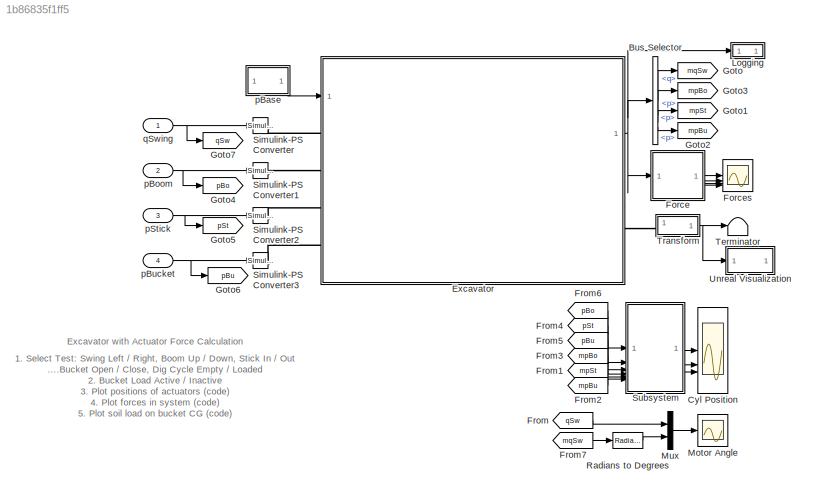
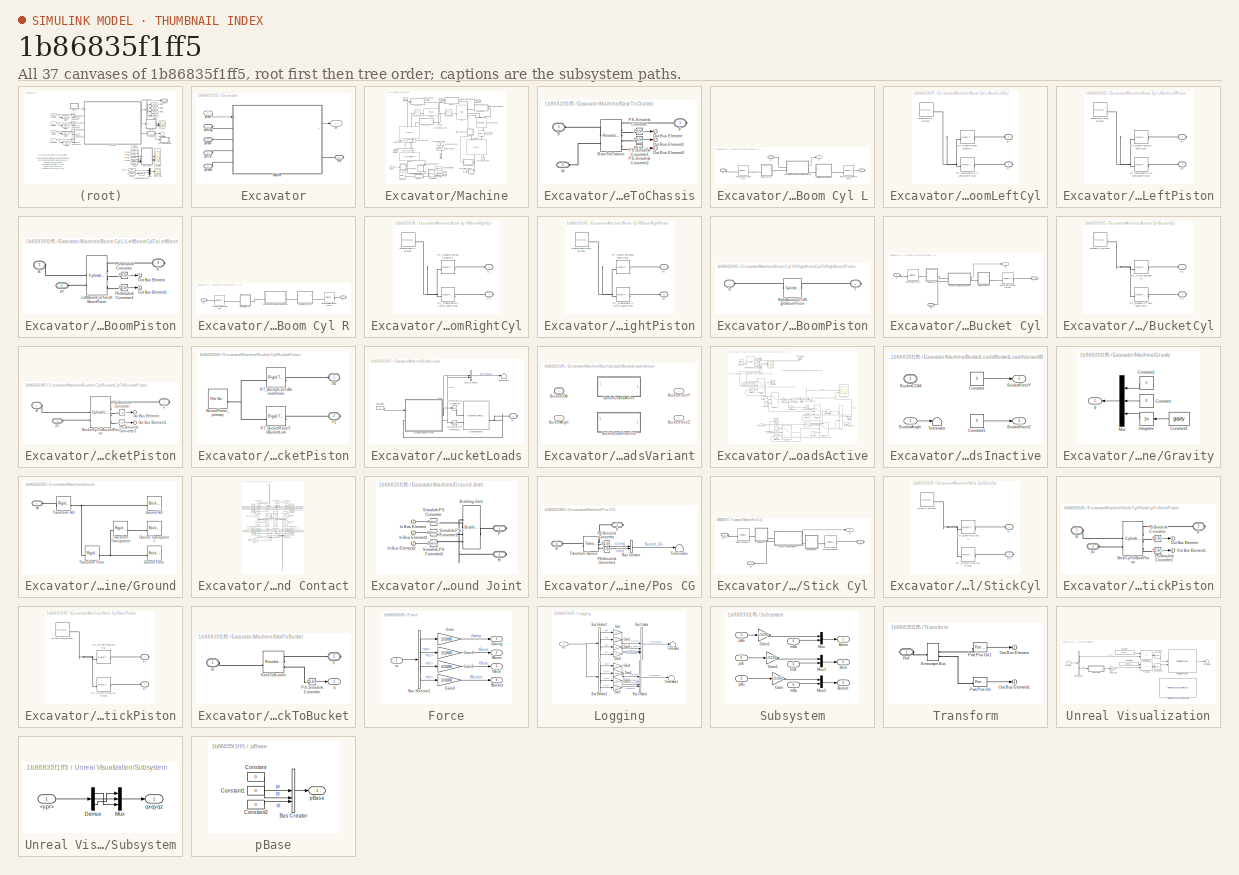
[diagram: thumbnail index - all 37 canvases of the model, root first then tree order]
MODEL slx_1b86835f1ff5
KIND model
CONFIG AbsTol = 1e-3
CONFIG MaxStep = 0.1
CONFIG PostLoadFcn = set_param(bdroot,'IgnoredZcDiagnostic','none');\nactiveTestPos = ScenarioMotion.loadedBucketDigCycle;
CONFIG SolverName = ode23t
CONFIG StopTime = activeTestPos.getElement('swingAng').Time(end)
WORKSPACE source: external: MAT-File  (data not in archive)
BLOCK [BusSelector] Bus Selector
  OutputSignals = Swing.q,Boom.p,Stick.p,Bucket.p
BLOCK [Scope] Cyl Position
  ActiveDisplayYMaximum = 1.26585
  ActiveDisplayYMinimum = -0.10545
  DataLoggingVariableName = ScopeData1
  Floating = off
  GraphicalSettings = {"GraphicalSettings":{"LegacySettings":true,"Style":{"AxesScalingProperties":{"ScaleAxesLimitsAtStop":false},"Style":{"AxesColor":"[0 0 0]","ChannelNames":[""],"ColorOrder":"[1 0.909803921568627 0.392156862745098;0.149019607843137 0.549019607843137 0.866666666666667;0.96078431372549 0.466666666666667 0.16078431372549;0.286274509803922 0.858823529411765 0.250980392156863;0.752941176470588 0.3607843...<+788ch>
  MultipleDisplayCache = [{"MaxYLimMag":1.26585,"MaxYLimReal":1.26585,"MinYLimMag":0,"MinYLimReal":-0.10545,"PlotAsMagnitudePhase":false,"ShowGrid":true,"ShowLegend":false,"Title":"%<SignalLabel>","YLabel":""}]
  NumInputPorts = 3
  WasSavedAsWebScope = on
  WindowPosition = [987 448 424 330]
BLOCK [SubSystem] Excavator
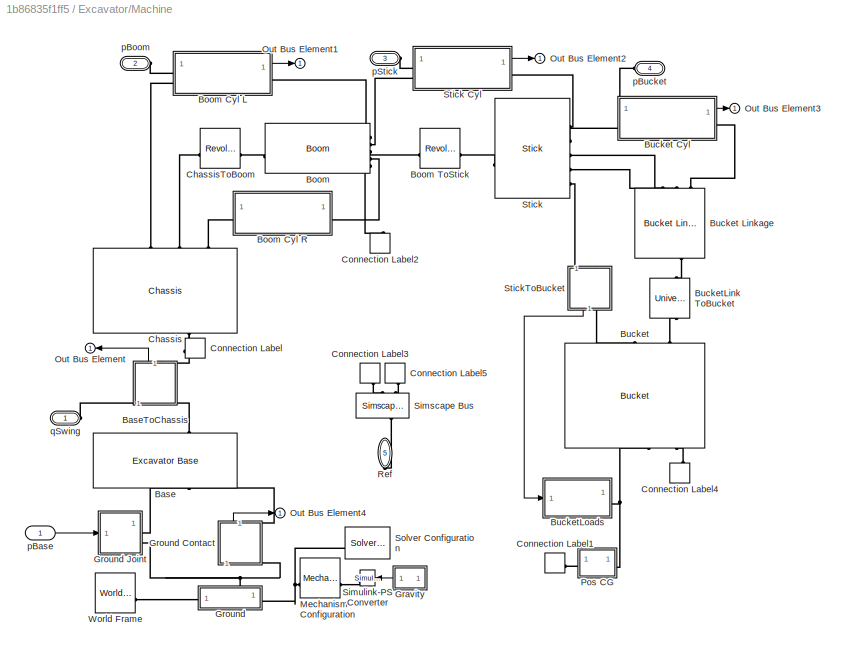
BLOCK [SubSystem] Excavator/Machine
BLOCK [Reference] Excavator/Machine/Base  REF=Excavator_Parts_Lib/Excavator
Base
  NameLocation = right
  SourceBlock = Excavator_Parts_Lib/Excavator\nBase
  Tag = AAA55596-1DB0-4345-9724-6685E48489E2
BLOCK [SubSystem] Excavator/Machine/BaseToChassis
  NameLocation = right
  Tag = 1fdcb50d-bed1-4557-9df5-71c57fded59e
BLOCK [PMIOPort] Excavator/Machine/BaseToChassis/B
  Port = 3
  Side = Left
BLOCK [Reference] Excavator/Machine/BaseToChassis/BaseToChassis  REF=sm_lib/Joints/Revolute Joint
  SourceBlock = sm_lib/Joints/Revolute Joint
  SourceType = Revolute Joint
BLOCK [PMIOPort] Excavator/Machine/BaseToChassis/F
  Side = Right
BLOCK [Outport] Excavator/Machine/BaseToChassis/Out Bus Element
BLOCK [Outport] Excavator/Machine/BaseToChassis/Out Bus Element1
BLOCK [Outport] Excavator/Machine/BaseToChassis/Out Bus Element2
BLOCK [Reference] Excavator/Machine/BaseToChassis/PS-Simulink Converter  REF=nesl_utility/PS-Simulink
Converter
  SourceBlock = nesl_utility/PS-Simulink\nConverter
  SourceType = PS-Simulink\nConverter
BLOCK [Reference] Excavator/Machine/BaseToChassis/PS-Simulink Converter1  REF=nesl_utility/PS-Simulink
Converter
  SourceBlock = nesl_utility/PS-Simulink\nConverter
  SourceType = PS-Simulink\nConverter
BLOCK [Reference] Excavator/Machine/BaseToChassis/PS-Simulink Converter2  REF=nesl_utility/PS-Simulink
Converter
  SourceBlock = nesl_utility/PS-Simulink\nConverter
  SourceType = PS-Simulink\nConverter
BLOCK [PMIOPort] Excavator/Machine/BaseToChassis/qz
  Port = 2
  Side = Left
BLOCK [Reference] Excavator/Machine/Boom  REF=Excavator_Parts_Lib/Boom
  SourceBlock = Excavator_Parts_Lib/Boom
  Tag = FF941BC7-23B6-8A4E-AE2C-D7583C913694
BLOCK [SubSystem] Excavator/Machine/Boom Cyl L
BLOCK [PMIOPort] Excavator/Machine/Boom Cyl L/B
  Port = 2
  Side = Left
BLOCK [SubSystem] Excavator/Machine/Boom Cyl L/BoomLeftCyl
  Tag = 4F70B330-6F24-E84C-8BE5-4F108E58AE93
BLOCK [PMIOPort] Excavator/Machine/Boom Cyl L/BoomLeftCyl/B1
  Side = Left
BLOCK [Reference] Excavator/Machine/Boom Cyl L/BoomLeftCyl/BoomLeftCyl_primary  REF=sm_lib/Body Elements/File Solid
  SourceBlock = sm_lib/Body Elements/File Solid
  SourceType = File Solid
BLOCK [PMIOPort] Excavator/Machine/Boom Cyl L/BoomLeftCyl/F1
  Port = 2
  Side = Right
BLOCK [Reference] Excavator/Machine/Boom Cyl L/BoomLeftCyl/RT_ChassisToLeftBoomCyl  REF=sm_lib/Frames and
Transforms/Rigid
Transform
  SourceBlock = sm_lib/Frames and\nTransforms/Rigid\nTransform
  SourceType = Rigid\nTransform
BLOCK [Reference] Excavator/Machine/Boom Cyl L/BoomLeftCyl/RT_LeftBoomCylToLeftBoomPiston  REF=sm_lib/Frames and
Transforms/Rigid
Transform
  SourceBlock = sm_lib/Frames and\nTransforms/Rigid\nTransform
  SourceType = Rigid\nTransform
BLOCK [SubSystem] Excavator/Machine/Boom Cyl L/BoomLeftPiston
  Tag = 45215E48-B489-9D47-85FC-0A495393BD12
BLOCK [PMIOPort] Excavator/Machine/Boom Cyl L/BoomLeftPiston/B1
  Port = 2
  Side = Right
BLOCK [PMIOPort] Excavator/Machine/Boom Cyl L/BoomLeftPiston/B2
  Side = Left
BLOCK [Reference] Excavator/Machine/Boom Cyl L/BoomLeftPiston/BoomLeftPiston_primary  REF=sm_lib/Body Elements/File Solid
  SourceBlock = sm_lib/Body Elements/File Solid
  SourceType = File Solid
BLOCK [Reference] Excavator/Machine/Boom Cyl L/BoomLeftPiston/RT_BoomToLeftBoomPiston  REF=sm_lib/Frames and
Transforms/Rigid
Transform
  SourceBlock = sm_lib/Frames and\nTransforms/Rigid\nTransform
  SourceType = Rigid\nTransform
BLOCK [Reference] Excavator/Machine/Boom Cyl L/BoomLeftPiston/RT_LeftBoomCylToLeftBoomPiston  REF=sm_lib/Frames and
Transforms/Rigid
Transform
  SourceBlock = sm_lib/Frames and\nTransforms/Rigid\nTransform
  SourceType = Rigid\nTransform
BLOCK [Reference] Excavator/Machine/Boom Cyl L/BoomToLeftBoomPiston  REF=sm_lib/Joints/Universal
Joint
  NameLocation = top
  SourceBlock = sm_lib/Joints/Universal\nJoint
  SourceType = Universal\nJoint
BLOCK [Reference] Excavator/Machine/Boom Cyl L/ChassisToLeftBoomCyl  REF=sm_lib/Joints/Universal
Joint
  SourceBlock = sm_lib/Joints/Universal\nJoint
  SourceType = Universal\nJoint
BLOCK [PMIOPort] Excavator/Machine/Boom Cyl L/F
  Port = 3
  Side = Right
BLOCK [SubSystem] Excavator/Machine/Boom Cyl L/LeftBoomCylToLeftBoomPiston
  Tag = 020d177e-0dad-473d-ac20-6fcc1e17d1fc
BLOCK [PMIOPort] Excavator/Machine/Boom Cyl L/LeftBoomCylToLeftBoomPiston/B
  Port = 2
  Side = Left
BLOCK [PMIOPort] Excavator/Machine/Boom Cyl L/LeftBoomCylToLeftBoomPiston/F
  Port = 3
  Side = Right
BLOCK [Reference] Excavator/Machine/Boom Cyl L/LeftBoomCylToLeftBoomPiston/LeftBoomCylToLeftBoomPiston  REF=sm_lib/Joints/Cylindrical
Joint
  SourceBlock = sm_lib/Joints/Cylindrical\nJoint
  SourceType = Cylindrical\nJoint
BLOCK [Outport] Excavator/Machine/Boom Cyl L/LeftBoomCylToLeftBoomPiston/Out Bus Element
BLOCK [Outport] Excavator/Machine/Boom Cyl L/LeftBoomCylToLeftBoomPiston/Out Bus Element1
BLOCK [Reference] Excavator/Machine/Boom Cyl L/LeftBoomCylToLeftBoomPiston/PS-Simulink Converter  REF=nesl_utility/PS-Simulink
Converter
  SourceBlock = nesl_utility/PS-Simulink\nConverter
  SourceType = PS-Simulink\nConverter
BLOCK [Reference] Excavator/Machine/Boom Cyl L/LeftBoomCylToLeftBoomPiston/PS-Simulink Converter1  REF=nesl_utility/PS-Simulink
Converter
  SourceBlock = nesl_utility/PS-Simulink\nConverter
  SourceType = PS-Simulink\nConverter
BLOCK [PMIOPort] Excavator/Machine/Boom Cyl L/LeftBoomCylToLeftBoomPiston/pz
  Side = Left
BLOCK [Outport] Excavator/Machine/Boom Cyl L/m
BLOCK [PMIOPort] Excavator/Machine/Boom Cyl L/pz
  Side = Left
BLOCK [SubSystem] Excavator/Machine/Boom Cyl R
BLOCK [PMIOPort] Excavator/Machine/Boom Cyl R/B
  Port = 2
  Side = Left
BLOCK [SubSystem] Excavator/Machine/Boom Cyl R/BoomRightCyl
  Tag = 807666EC-A6D7-8B4A-99F9-B3248F920B99
BLOCK [PMIOPort] Excavator/Machine/Boom Cyl R/BoomRightCyl/B1
  Side = Left
BLOCK [Reference] Excavator/Machine/Boom Cyl R/BoomRightCyl/BoomRightCyl_primary  REF=sm_lib/Body Elements/File Solid
  SourceBlock = sm_lib/Body Elements/File Solid
  SourceType = File Solid
BLOCK [PMIOPort] Excavator/Machine/Boom Cyl R/BoomRightCyl/F1
  Port = 2
  Side = Right
BLOCK [Reference] Excavator/Machine/Boom Cyl R/BoomRightCyl/RT_ChassisToRightBoomCyl  REF=sm_lib/Frames and
Transforms/Rigid
Transform
  SourceBlock = sm_lib/Frames and\nTransforms/Rigid\nTransform
  SourceType = Rigid\nTransform
BLOCK [Reference] Excavator/Machine/Boom Cyl R/BoomRightCyl/RT_RightBoomCylToRightBoomPiston  REF=sm_lib/Frames and
Transforms/Rigid
Transform
  SourceBlock = sm_lib/Frames and\nTransforms/Rigid\nTransform
  SourceType = Rigid\nTransform
BLOCK [SubSystem] Excavator/Machine/Boom Cyl R/BoomRightPiston
  Tag = 00EE293A-0F1A-9247-9056-19EF67FE5161
BLOCK [PMIOPort] Excavator/Machine/Boom Cyl R/BoomRightPiston/B1
  Side = Right
BLOCK [PMIOPort] Excavator/Machine/Boom Cyl R/BoomRightPiston/B2
  Port = 2
  Side = Left
BLOCK [Reference] Excavator/Machine/Boom Cyl R/BoomRightPiston/BoomRightPiston_primary  REF=sm_lib/Body Elements/File Solid
  SourceBlock = sm_lib/Body Elements/File Solid
  SourceType = File Solid
BLOCK [Reference] Excavator/Machine/Boom Cyl R/BoomRightPiston/RT_BoomToRightBoomPiston  REF=sm_lib/Frames and
Transforms/Rigid
Transform
  SourceBlock = sm_lib/Frames and\nTransforms/Rigid\nTransform
  SourceType = Rigid\nTransform
BLOCK [Reference] Excavator/Machine/Boom Cyl R/BoomRightPiston/RT_RightBoomCylToRightBoomPiston  REF=sm_lib/Frames and
Transforms/Rigid
Transform
  SourceBlock = sm_lib/Frames and\nTransforms/Rigid\nTransform
  SourceType = Rigid\nTransform
BLOCK [Reference] Excavator/Machine/Boom Cyl R/BoomToRightBoomPiston  REF=sm_lib/Joints/Universal
Joint
  SourceBlock = sm_lib/Joints/Universal\nJoint
  SourceType = Universal\nJoint
BLOCK [Reference] Excavator/Machine/Boom Cyl R/ChassisToRightBoomCyl  REF=sm_lib/Joints/Universal
Joint
  SourceBlock = sm_lib/Joints/Universal\nJoint
  SourceType = Universal\nJoint
BLOCK [PMIOPort] Excavator/Machine/Boom Cyl R/F
  NameLocation = top
  Side = Right
BLOCK [SubSystem] Excavator/Machine/Boom Cyl R/RightBoomCylToRightBoomPiston
  Tag = f4b02144-fc21-4459-875a-429d4adb33c6
BLOCK [PMIOPort] Excavator/Machine/Boom Cyl R/RightBoomCylToRightBoomPiston/B
  Side = Left
BLOCK [PMIOPort] Excavator/Machine/Boom Cyl R/RightBoomCylToRightBoomPiston/F
  Port = 2
  Side = Right
BLOCK [Reference] Excavator/Machine/Boom Cyl R/RightBoomCylToRightBoomPiston/RightBoomCylToRightBoomPiston  REF=sm_lib/Joints/Cylindrical
Joint
  SourceBlock = sm_lib/Joints/Cylindrical\nJoint
  SourceType = Cylindrical\nJoint
BLOCK [Reference] Excavator/Machine/Boom ToStick  REF=sm_lib/Joints/Revolute Joint
  SourceBlock = sm_lib/Joints/Revolute Joint
  SourceType = Revolute Joint
BLOCK [Reference] Excavator/Machine/Bucket  REF=Excavator_Parts_Lib/Bucket
  NameLocation = right
  SourceBlock = Excavator_Parts_Lib/Bucket
  Tag = FF47B028-216B-7042-A7FD-934F60E6CEA6
BLOCK [SubSystem] Excavator/Machine/Bucket Cyl
  NameLocation = top
BLOCK [PMIOPort] Excavator/Machine/Bucket Cyl/B
  Port = 2
  Side = Left
BLOCK [SubSystem] Excavator/Machine/Bucket Cyl/BucketCyl
  Tag = 9FAF18D5-1596-3A48-9F24-977D2E18A318
BLOCK [PMIOPort] Excavator/Machine/Bucket Cyl/BucketCyl/B1
  Side = Left
BLOCK [Reference] Excavator/Machine/Bucket Cyl/BucketCyl/BucketCyl_primary  REF=sm_lib/Body Elements/File Solid
  SourceBlock = sm_lib/Body Elements/File Solid
  SourceType = File Solid
BLOCK [PMIOPort] Excavator/Machine/Bucket Cyl/BucketCyl/F1
  Port = 2
  Side = Right
BLOCK [Reference] Excavator/Machine/Bucket Cyl/BucketCyl/RT_BucketCylToBucketPiston  REF=sm_lib/Frames and
Transforms/Rigid
Transform
  SourceBlock = sm_lib/Frames and\nTransforms/Rigid\nTransform
  SourceType = Rigid\nTransform
BLOCK [Reference] Excavator/Machine/Bucket Cyl/BucketCyl/RT_StickToBucketCyl  REF=sm_lib/Frames and
Transforms/Rigid
Transform
  SourceBlock = sm_lib/Frames and\nTransforms/Rigid\nTransform
  SourceType = Rigid\nTransform
BLOCK [SubSystem] Excavator/Machine/Bucket Cyl/BucketCylToBucketPiston
  Tag = 47fb7853-569f-437e-8d3d-7cddda445dda
BLOCK [PMIOPort] Excavator/Machine/Bucket Cyl/BucketCylToBucketPiston/B
  Side = Left
BLOCK [Reference] Excavator/Machine/Bucket Cyl/BucketCylToBucketPiston/BucketCylToBucketPiston  REF=sm_lib/Joints/Cylindrical
Joint
  SourceBlock = sm_lib/Joints/Cylindrical\nJoint
  SourceType = Cylindrical\nJoint
BLOCK [PMIOPort] Excavator/Machine/Bucket Cyl/BucketCylToBucketPiston/F
  Port = 2
  Side = Right
BLOCK [Outport] Excavator/Machine/Bucket Cyl/BucketCylToBucketPiston/Out Bus Element
BLOCK [Outport] Excavator/Machine/Bucket Cyl/BucketCylToBucketPiston/Out Bus Element1
BLOCK [Reference] Excavator/Machine/Bucket Cyl/BucketCylToBucketPiston/PS-Simulink Converter  REF=nesl_utility/PS-Simulink
Converter
  SourceBlock = nesl_utility/PS-Simulink\nConverter
  SourceType = PS-Simulink\nConverter
BLOCK [Reference] Excavator/Machine/Bucket Cyl/BucketCylToBucketPiston/PS-Simulink Converter1  REF=nesl_utility/PS-Simulink
Converter
  SourceBlock = nesl_utility/PS-Simulink\nConverter
  SourceType = PS-Simulink\nConverter
BLOCK [PMIOPort] Excavator/Machine/Bucket Cyl/BucketCylToBucketPiston/pz
  Port = 3
  Side = Left
BLOCK [SubSystem] Excavator/Machine/Bucket Cyl/BucketPiston
  Tag = EF45ED1F-ED8A-8D4B-830B-367867E4E96A
BLOCK [PMIOPort] Excavator/Machine/Bucket Cyl/BucketPiston/B1
  Side = Left
BLOCK [Reference] Excavator/Machine/Bucket Cyl/BucketPiston/BucketPiston_primary  REF=sm_lib/Body Elements/File Solid
  SourceBlock = sm_lib/Body Elements/File Solid
  SourceType = File Solid
BLOCK [PMIOPort] Excavator/Machine/Bucket Cyl/BucketPiston/F1
  Port = 2
  Side = Right
BLOCK [Reference] Excavator/Machine/Bucket Cyl/BucketPiston/RT_BucketCylToBucketPiston  REF=sm_lib/Frames and
Transforms/Rigid
Transform
  SourceBlock = sm_lib/Frames and\nTransforms/Rigid\nTransform
  SourceType = Rigid\nTransform
BLOCK [Reference] Excavator/Machine/Bucket Cyl/BucketPiston/RT_BucketPistonToBucketLink  REF=sm_lib/Frames and
Transforms/Rigid
Transform
  SourceBlock = sm_lib/Frames and\nTransforms/Rigid\nTransform
  SourceType = Rigid\nTransform
BLOCK [Reference] Excavator/Machine/Bucket Cyl/BucketPistonToBucketLink  REF=sm_lib/Joints/Universal
Joint
  SourceBlock = sm_lib/Joints/Universal\nJoint
  SourceType = Universal\nJoint
BLOCK [PMIOPort] Excavator/Machine/Bucket Cyl/F
  Port = 3
  Side = Right
BLOCK [Reference] Excavator/Machine/Bucket Cyl/StickToBucketCyl  REF=sm_lib/Joints/Universal
Joint
  SourceBlock = sm_lib/Joints/Universal\nJoint
  SourceType = Universal\nJoint
BLOCK [Outport] Excavator/Machine/Bucket Cyl/m
BLOCK [PMIOPort] Excavator/Machine/Bucket Cyl/pz
  Side = Left
BLOCK [Reference] Excavator/Machine/Bucket Linkage  REF=Excavator_Parts_Lib/Bucket
Linkage
  NameLocation = right
  SourceBlock = Excavator_Parts_Lib/Bucket\nLinkage
BLOCK [Reference] Excavator/Machine/BucketLink ToBucket  REF=sm_lib/Joints/Universal
Joint
  NameLocation = right
  SourceBlock = sm_lib/Joints/Universal\nJoint
  SourceType = Universal\nJoint
BLOCK [SubSystem] Excavator/Machine/BucketLoads
BLOCK [Reference] Excavator/Machine/BucketLoads/BucketForces  REF=sm_lib/Forces and
Torques/External Force
and Torque
  SourceBlock = sm_lib/Forces and\nTorques/External Force\nand Torque
  SourceType = External Force\nand Torque
BLOCK [SubSystem] Excavator/Machine/BucketLoads/BucketLoadsVariant
  Variant = on
BLOCK [Inport] Excavator/Machine/BucketLoads/BucketLoadsVariant/BucketAngle
BLOCK [PMIOPort] Excavator/Machine/BucketLoads/BucketLoadsVariant/BucketCOM
  Side = Left
BLOCK [Outport] Excavator/Machine/BucketLoads/BucketLoadsVariant/BucketForceY
BLOCK [Outport] Excavator/Machine/BucketLoads/BucketLoadsVariant/BucketForceZ
  Port = 2
BLOCK [SubSystem] Excavator/Machine/BucketLoads/BucketLoadsVariant/BucketLoadsActive
  VariantControl = bucketLoadsActive==true
BLOCK [Inport] Excavator/Machine/BucketLoads/BucketLoadsVariant/BucketLoadsActive/BucketAngle
BLOCK [Lookup_n-D] Excavator/Machine/BucketLoads/BucketLoadsVariant/BucketLoadsActive/BucketAngleToBucketLoadPercent
  BreakpointsForDimension1 = [-100 -20]
  ExtrapMethod = Clip
  InputPortMap = u0
  InternalRulePriority = Speed
  NumberOfTableDimensions = 1
  RndMeth = Simplest
  Table = [1 0]
  UseLastTableValue = on
BLOCK [PMIOPort] Excavator/Machine/BucketLoads/BucketLoadsVariant/BucketLoadsActive/BucketCOM
  NameLocation = top
  Side = Left
BLOCK [Outport] Excavator/Machine/BucketLoads/BucketLoadsVariant/BucketLoadsActive/BucketForceY
BLOCK [Outport] Excavator/Machine/BucketLoads/BucketLoadsVariant/BucketLoadsActive/BucketForceZ
  Port = 2
BLOCK [Reference] Excavator/Machine/BucketLoads/BucketLoadsVariant/BucketLoadsActive/Compare To Constant  REF=simulink/Logic and Bit
Operations/Compare
To Constant
  SourceBlock = simulink/Logic and Bit\nOperations/Compare\nTo Constant
  SourceType = Compare To Constant
BLOCK [Reference] Excavator/Machine/BucketLoads/BucketLoadsVariant/BucketLoadsActive/Compare To Constant4  REF=simulink/Logic and Bit
Operations/Compare
To Constant
  SourceBlock = simulink/Logic and Bit\nOperations/Compare\nTo Constant
  SourceType = Compare To Constant
BLOCK [Constant] Excavator/Machine/BucketLoads/BucketLoadsVariant/BucketLoadsActive/Constant
BLOCK [Constant] Excavator/Machine/BucketLoads/BucketLoadsVariant/BucketLoadsActive/Constant2
  Value = 0
BLOCK [Constant] Excavator/Machine/BucketLoads/BucketLoadsVariant/BucketLoadsActive/Constant5
BLOCK [Derivative] Excavator/Machine/BucketLoads/BucketLoadsVariant/BucketLoadsActive/Derivative
BLOCK [TransferFcn] Excavator/Machine/BucketLoads/BucketLoadsVariant/BucketLoadsActive/Filter fy
  Denominator = [0.1 1]
BLOCK [TransferFcn] Excavator/Machine/BucketLoads/BucketLoadsVariant/BucketLoadsActive/Filter fz
  Denominator = [0.1 1]
BLOCK [Reference] Excavator/Machine/BucketLoads/BucketLoadsVariant/BucketLoadsActive/PS-Simulink Converter  REF=nesl_utility/PS-Simulink
Converter
  SourceBlock = nesl_utility/PS-Simulink\nConverter
  SourceType = PS-Simulink\nConverter
BLOCK [Reference] Excavator/Machine/BucketLoads/BucketLoadsVariant/BucketLoadsActive/PS-Simulink Converter1  REF=nesl_utility/PS-Simulink
Converter
  SourceBlock = nesl_utility/PS-Simulink\nConverter
  SourceType = PS-Simulink\nConverter
BLOCK [Product] Excavator/Machine/BucketLoads/BucketLoadsVariant/BucketLoadsActive/Product
BLOCK [RateLimiter] Excavator/Machine/BucketLoads/BucketLoadsVariant/BucketLoadsActive/Rate Limiter
  FallingSlewLimit = -80
  RisingSlewLimit = 750
  SampleTimeMode = inherited
BLOCK [Scope] Excavator/Machine/BucketLoads/BucketLoadsVariant/BucketLoadsActive/Scope
  ActiveDisplayYMaximum = 4889.74505
  ActiveDisplayYMinimum = -4867.9057
  DataLoggingVariableName = ScopeData1
  Floating = off
  GraphicalSettings = {"GraphicalSettings":{"LegacySettings":true,"Style":{"AxesScalingProperties":{"ScaleAxesLimitsAtStop":false},"Style":{"AxesColor":"[0 0 0]","ChannelNames":["",""],"ColorOrder":"[1 0.909803921568627 0.392156862745098;0.149019607843137 0.549019607843137 0.866666666666667;0.96078431372549 0.466666666666667 0.16078431372549;0.286274509803922 0.858823529411765 0.250980392156863;0.752941176470588 0.3607...<+588ch>
  LayoutDimensionsString = [2 1]
  MultipleDisplayCache = [{"MaxYLimMag":4889.74505,"MaxYLimReal":4889.74505,"MinYLimMag":0,"MinYLimReal":-4867.9057,"PlotAsMagnitudePhase":false,"ShowGrid":true,"ShowLegend":false,"Title":"%<SignalLabel>","YLabel":""},{"MaxYLimMag":10,"MaxYLimReal":1152.66813,"MinYLimMag":0,"MinYLimReal":-2802.38862,"PlotAsMagnitudePhase":false,"ShowGrid":true,"ShowLegend":false,"Title":"%<SignalLabel>","YLabel":""}]
  NumInputPorts = 2
  WasSavedAsWebScope = on
BLOCK [Scope] Excavator/Machine/BucketLoads/BucketLoadsVariant/BucketLoadsActive/Scope1
  ActiveDisplayYMaximum = 270.897
  ActiveDisplayYMinimum = -30.09967
  DataLoggingVariableName = ScopeData2
  Floating = off
  GraphicalSettings = {"GraphicalSettings":{"LegacySettings":true,"Style":{"AxesScalingProperties":{"ScaleAxesLimitsAtStop":false},"Style":{"AxesColor":"[0 0 0]","ChannelNames":[""],"ColorOrder":"[1 0.909803921568627 0.392156862745098;0.149019607843137 0.549019607843137 0.866666666666667;0.96078431372549 0.466666666666667 0.16078431372549;0.286274509803922 0.858823529411765 0.250980392156863;0.752941176470588 0.3607843...<+569ch>
  MultipleDisplayCache = [{"MaxYLimMag":270.897,"MaxYLimReal":270.897,"MinYLimMag":0,"MinYLimReal":-30.09967,"PlotAsMagnitudePhase":false,"ShowGrid":true,"ShowLegend":false,"Title":"%<SignalLabel>","YLabel":""}]
  NumInputPorts = 1
  WasSavedAsWebScope = on
BLOCK [Scope] Excavator/Machine/BucketLoads/BucketLoadsVariant/BucketLoadsActive/Scope2
  ActiveDisplayYMaximum = 248.19229
  ActiveDisplayYMinimum = -174.28167
  DataLoggingVariableName = ScopeData3
  Floating = off
  GraphicalSettings = {"GraphicalSettings":{"LegacySettings":true,"Style":{"AxesScalingProperties":{"ScaleAxesLimitsAtStop":false},"Style":{"AxesColor":"[0 0 0]","ChannelNames":[""],"ColorOrder":"[1 0.909803921568627 0.392156862745098;0.149019607843137 0.549019607843137 0.866666666666667;0.96078431372549 0.466666666666667 0.16078431372549;0.286274509803922 0.858823529411765 0.250980392156863;0.752941176470588 0.3607843...<+536ch>
  MultipleDisplayCache = [{"MaxYLimMag":248.19229,"MaxYLimReal":248.19229,"MinYLimMag":0,"MinYLimReal":-174.28167,"PlotAsMagnitudePhase":false,"ShowGrid":true,"ShowLegend":true,"Title":"%<SignalLabel>","YLabel":""}]
  NumInputPorts = 2
  ShowLegend = on
  WasSavedAsWebScope = on
  WindowPosition = [987 37 1125 741]
BLOCK [Scope] Excavator/Machine/BucketLoads/BucketLoadsVariant/BucketLoadsActive/Scope3
  ActiveDisplayYMaximum = 6.44138
  ActiveDisplayYMinimum = -124.88832
  DataLoggingVariableName = ScopeData5
  Floating = off
  GraphicalSettings = {"GraphicalSettings":{"LegacySettings":true,"Style":{"AxesScalingProperties":{"ScaleAxesLimitsAtStop":false},"Style":{"AxesColor":"[0 0 0]","ChannelNames":[""],"ColorOrder":"[1 0.909803921568627 0.392156862745098;0.149019607843137 0.549019607843137 0.866666666666667;0.96078431372549 0.466666666666667 0.16078431372549;0.286274509803922 0.858823529411765 0.250980392156863;0.752941176470588 0.3607843...<+513ch>
  MultipleDisplayCache = [{"MaxYLimMag":124.88832,"MaxYLimReal":6.44138,"MinYLimMag":0,"MinYLimReal":-124.88832,"PlotAsMagnitudePhase":false,"ShowGrid":true,"ShowLegend":false,"Title":"%<SignalLabel>","YLabel":""}]
  NumInputPorts = 1
  WasSavedAsWebScope = on
  WindowPosition = [987 358 560 420]
BLOCK [Switch] Excavator/Machine/BucketLoads/BucketLoadsVariant/BucketLoadsActive/Switch
  Criteria = u2 > Threshold
  InputSameDT = off
  SaturateOnIntegerOverflow = off
BLOCK [Switch] Excavator/Machine/BucketLoads/BucketLoadsVariant/BucketLoadsActive/Switch1
  Criteria = u2 ~= 0
  InputSameDT = off
  SaturateOnIntegerOverflow = off
BLOCK [Switch] Excavator/Machine/BucketLoads/BucketLoadsVariant/BucketLoadsActive/Switch2
  Criteria = u2 ~= 0
  InputSameDT = off
  SaturateOnIntegerOverflow = off
BLOCK [Switch] Excavator/Machine/BucketLoads/BucketLoadsVariant/BucketLoadsActive/Switch6
  Criteria = u2 > Threshold
  InputSameDT = off
  SaturateOnIntegerOverflow = off
BLOCK [Switch] Excavator/Machine/BucketLoads/BucketLoadsVariant/BucketLoadsActive/Switch7
  Criteria = u2 > Threshold
  InputSameDT = off
  SaturateOnIntegerOverflow = off
BLOCK [Reference] Excavator/Machine/BucketLoads/BucketLoadsVariant/BucketLoadsActive/Transform Sensor  REF=sm_lib/Frames and
Transforms/Transform
Sensor
  SourceBlock = sm_lib/Frames and\nTransforms/Transform\nSensor
  SourceType = Transform\nSensor
BLOCK [UnitDelay] Excavator/Machine/BucketLoads/BucketLoadsVariant/BucketLoadsActive/Unit Delay
  SampleTime = -1
BLOCK [UnitDelay] Excavator/Machine/BucketLoads/BucketLoadsVariant/BucketLoadsActive/Unit Delay1
  SampleTime = -1
BLOCK [UnitDelay] Excavator/Machine/BucketLoads/BucketLoadsVariant/BucketLoadsActive/Unit Delay3
  SampleTime = -1
BLOCK [Reference] Excavator/Machine/BucketLoads/BucketLoadsVariant/BucketLoadsActive/World Frame  REF=sm_lib/Frames and
Transforms/World Frame
  SourceBlock = sm_lib/Frames and\nTransforms/World Frame
  SourceType = World Frame
BLOCK [Gain] Excavator/Machine/BucketLoads/BucketLoadsVariant/BucketLoadsActive/YForceGain
  Gain = velocityToYForceGain
BLOCK [Saturate] Excavator/Machine/BucketLoads/BucketLoadsVariant/BucketLoadsActive/YForceSaturation
  LowerLimit = 0
  UpperLimit = yForceMax
BLOCK [Gain] Excavator/Machine/BucketLoads/BucketLoadsVariant/BucketLoadsActive/ZForceGain
  Gain = yForceToZForceGain
BLOCK [Saturate] Excavator/Machine/BucketLoads/BucketLoadsVariant/BucketLoadsActive/ZForceSaturation
  LowerLimit = -zForceMax
  UpperLimit = -materialWeight
BLOCK [SubSystem] Excavator/Machine/BucketLoads/BucketLoadsVariant/BucketLoadsInactive
  VariantControl = bucketLoadsActive==false
BLOCK [Inport] Excavator/Machine/BucketLoads/BucketLoadsVariant/BucketLoadsInactive/BucketAngle
BLOCK [PMIOPort] Excavator/Machine/BucketLoads/BucketLoadsVariant/BucketLoadsInactive/BucketCOM
  Side = Left
BLOCK [Outport] Excavator/Machine/BucketLoads/BucketLoadsVariant/BucketLoadsInactive/BucketForceY
BLOCK [Outport] Excavator/Machine/BucketLoads/BucketLoadsVariant/BucketLoadsInactive/BucketForceZ
  Port = 2
BLOCK [Constant] Excavator/Machine/BucketLoads/BucketLoadsVariant/BucketLoadsInactive/Constant
  Value = 0
BLOCK [Constant] Excavator/Machine/BucketLoads/BucketLoadsVariant/BucketLoadsInactive/Constant1
  Value = 0
BLOCK [Terminator] Excavator/Machine/BucketLoads/BucketLoadsVariant/BucketLoadsInactive/Terminator
BLOCK [BusCreator] Excavator/Machine/BucketLoads/Bus Creator
  DisplayOption = bar
  InheritFromInputs = on
  Inputs = 2
BLOCK [PMIOPort] Excavator/Machine/BucketLoads/Frc
  Side = Right
BLOCK [Reference] Excavator/Machine/BucketLoads/Simulink-PS Converter  REF=nesl_utility/Simulink-PS
Converter
  SourceBlock = nesl_utility/Simulink-PS\nConverter
  SourceType = Simulink-PS\nConverter
BLOCK [Reference] Excavator/Machine/BucketLoads/Simulink-PS Converter1  REF=nesl_utility/Simulink-PS
Converter
  SourceBlock = nesl_utility/Simulink-PS\nConverter
  SourceType = Simulink-PS\nConverter
BLOCK [Terminator] Excavator/Machine/BucketLoads/Terminator
BLOCK [Inport] Excavator/Machine/BucketLoads/qBucket
BLOCK [Reference] Excavator/Machine/Chassis  REF=Excavator_Parts_Lib/Chassis
  NameLocation = right
  SourceBlock = Excavator_Parts_Lib/Chassis
  Tag = 19F311DB-9E7A-8F4D-82CB-D8DCD5D4899B
BLOCK [Reference] Excavator/Machine/ChassisToBoom  REF=sm_lib/Joints/Revolute Joint
  SourceBlock = sm_lib/Joints/Revolute Joint
  SourceType = Revolute Joint
BLOCK [ConnectionLabel] Excavator/Machine/Connection Label
  Label = Cha
BLOCK [ConnectionLabel] Excavator/Machine/Connection Label1
  Label = Cha
BLOCK [ConnectionLabel] Excavator/Machine/Connection Label2
  Label = Bo
  NameLocation = left
BLOCK [ConnectionLabel] Excavator/Machine/Connection Label3
  Label = Bo
  NameLocation = right
BLOCK [ConnectionLabel] Excavator/Machine/Connection Label4
  Label = Bu
  NameLocation = left
BLOCK [ConnectionLabel] Excavator/Machine/Connection Label5
  Label = Bu
  NameLocation = right
BLOCK [SubSystem] Excavator/Machine/Gravity
BLOCK [Constant] Excavator/Machine/Gravity/Constant
  Value = 0
BLOCK [Constant] Excavator/Machine/Gravity/Constant1
  Value = 0
BLOCK [Constant] Excavator/Machine/Gravity/Constant2
  Value = gravity
BLOCK [Integrator] Excavator/Machine/Gravity/Integrator
  LimitOutput = on
  LowerSaturationLimit = gravity
  UpperSaturationLimit = 0
BLOCK [Mux] Excavator/Machine/Gravity/Mux
  DisplayOption = bar
  Inputs = 3
BLOCK [Outport] Excavator/Machine/Gravity/g
BLOCK [SubSystem] Excavator/Machine/Ground
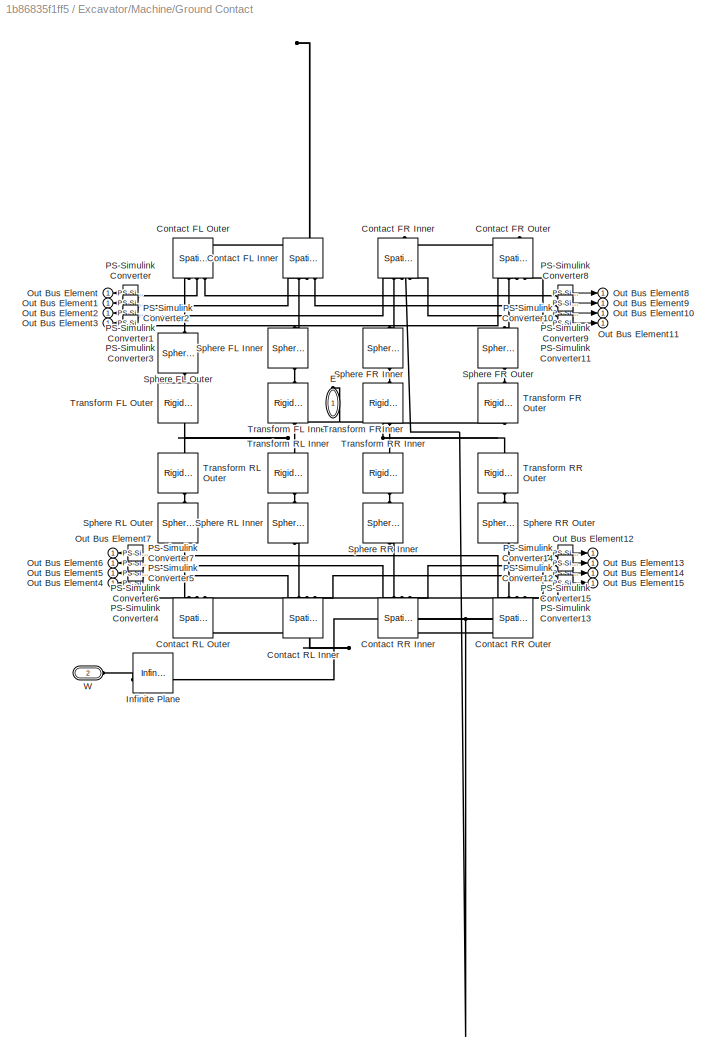
BLOCK [SubSystem] Excavator/Machine/Ground Contact
  NameLocation = left
BLOCK [Reference] Excavator/Machine/Ground Contact/Contact FL Inner  REF=sm_lib/Forces and
Torques/Spatial
Contact Force
  NameLocation = left
  SourceBlock = sm_lib/Forces and\nTorques/Spatial\nContact Force
  SourceType = Spatial\nContact Force
BLOCK [Reference] Excavator/Machine/Ground Contact/Contact FL Outer  REF=sm_lib/Forces and
Torques/Spatial
Contact Force
  NameLocation = left
  SourceBlock = sm_lib/Forces and\nTorques/Spatial\nContact Force
  SourceType = Spatial\nContact Force
BLOCK [Reference] Excavator/Machine/Ground Contact/Contact FR Inner  REF=sm_lib/Forces and
Torques/Spatial
Contact Force
  NameLocation = right
  SourceBlock = sm_lib/Forces and\nTorques/Spatial\nContact Force
  SourceType = Spatial\nContact Force
BLOCK [Reference] Excavator/Machine/Ground Contact/Contact FR Outer  REF=sm_lib/Forces and
Torques/Spatial
Contact Force
  NameLocation = right
  SourceBlock = sm_lib/Forces and\nTorques/Spatial\nContact Force
  SourceType = Spatial\nContact Force
BLOCK [Reference] Excavator/Machine/Ground Contact/Contact RL Inner  REF=sm_lib/Forces and
Torques/Spatial
Contact Force
  NameLocation = left
  SourceBlock = sm_lib/Forces and\nTorques/Spatial\nContact Force
  SourceType = Spatial\nContact Force
BLOCK [Reference] Excavator/Machine/Ground Contact/Contact RL Outer  REF=sm_lib/Forces and
Torques/Spatial
Contact Force
  NameLocation = left
  SourceBlock = sm_lib/Forces and\nTorques/Spatial\nContact Force
  SourceType = Spatial\nContact Force
BLOCK [Reference] Excavator/Machine/Ground Contact/Contact RR Inner  REF=sm_lib/Forces and
Torques/Spatial
Contact Force
  NameLocation = right
  SourceBlock = sm_lib/Forces and\nTorques/Spatial\nContact Force
  SourceType = Spatial\nContact Force
BLOCK [Reference] Excavator/Machine/Ground Contact/Contact RR Outer  REF=sm_lib/Forces and
Torques/Spatial
Contact Force
  NameLocation = right
  SourceBlock = sm_lib/Forces and\nTorques/Spatial\nContact Force
  SourceType = Spatial\nContact Force
BLOCK [PMIOPort] Excavator/Machine/Ground Contact/E
  NameLocation = left
  Side = Right
BLOCK [Reference] Excavator/Machine/Ground Contact/Infinite Plane  REF=sm_lib/Curves and Surfaces/Infinite Plane
  SourceBlock = sm_lib/Curves and Surfaces/Infinite Plane
  SourceType = Infinite Plane
BLOCK [Outport] Excavator/Machine/Ground Contact/Out Bus Element
BLOCK [Outport] Excavator/Machine/Ground Contact/Out Bus Element1
BLOCK [Outport] Excavator/Machine/Ground Contact/Out Bus Element10
BLOCK [Outport] Excavator/Machine/Ground Contact/Out Bus Element11
BLOCK [Outport] Excavator/Machine/Ground Contact/Out Bus Element12
BLOCK [Outport] Excavator/Machine/Ground Contact/Out Bus Element13
BLOCK [Outport] Excavator/Machine/Ground Contact/Out Bus Element14
BLOCK [Outport] Excavator/Machine/Ground Contact/Out Bus Element15
BLOCK [Outport] Excavator/Machine/Ground Contact/Out Bus Element2
BLOCK [Outport] Excavator/Machine/Ground Contact/Out Bus Element3
BLOCK [Outport] Excavator/Machine/Ground Contact/Out Bus Element4
BLOCK [Outport] Excavator/Machine/Ground Contact/Out Bus Element5
BLOCK [Outport] Excavator/Machine/Ground Contact/Out Bus Element6
BLOCK [Outport] Excavator/Machine/Ground Contact/Out Bus Element7
BLOCK [Outport] Excavator/Machine/Ground Contact/Out Bus Element8
BLOCK [Outport] Excavator/Machine/Ground Contact/Out Bus Element9
BLOCK [Reference] Excavator/Machine/Ground Contact/PS-Simulink Converter  REF=nesl_utility/PS-Simulink
Converter
  SourceBlock = nesl_utility/PS-Simulink\nConverter
  SourceType = PS-Simulink\nConverter
BLOCK [Reference] Excavator/Machine/Ground Contact/PS-Simulink Converter1  REF=nesl_utility/PS-Simulink
Converter
  SourceBlock = nesl_utility/PS-Simulink\nConverter
  SourceType = PS-Simulink\nConverter
BLOCK [Reference] Excavator/Machine/Ground Contact/PS-Simulink Converter10  REF=nesl_utility/PS-Simulink
Converter
  SourceBlock = nesl_utility/PS-Simulink\nConverter
  SourceType = PS-Simulink\nConverter
BLOCK [Reference] Excavator/Machine/Ground Contact/PS-Simulink Converter11  REF=nesl_utility/PS-Simulink
Converter
  SourceBlock = nesl_utility/PS-Simulink\nConverter
  SourceType = PS-Simulink\nConverter
BLOCK [Reference] Excavator/Machine/Ground Contact/PS-Simulink Converter12  REF=nesl_utility/PS-Simulink
Converter
  SourceBlock = nesl_utility/PS-Simulink\nConverter
  SourceType = PS-Simulink\nConverter
BLOCK [Reference] Excavator/Machine/Ground Contact/PS-Simulink Converter13  REF=nesl_utility/PS-Simulink
Converter
  SourceBlock = nesl_utility/PS-Simulink\nConverter
  SourceType = PS-Simulink\nConverter
BLOCK [Reference] Excavator/Machine/Ground Contact/PS-Simulink Converter14  REF=nesl_utility/PS-Simulink
Converter
  SourceBlock = nesl_utility/PS-Simulink\nConverter
  SourceType = PS-Simulink\nConverter
BLOCK [Reference] Excavator/Machine/Ground Contact/PS-Simulink Converter15  REF=nesl_utility/PS-Simulink
Converter
  SourceBlock = nesl_utility/PS-Simulink\nConverter
  SourceType = PS-Simulink\nConverter
BLOCK [Reference] Excavator/Machine/Ground Contact/PS-Simulink Converter2  REF=nesl_utility/PS-Simulink
Converter
  SourceBlock = nesl_utility/PS-Simulink\nConverter
  SourceType = PS-Simulink\nConverter
BLOCK [Reference] Excavator/Machine/Ground Contact/PS-Simulink Converter3  REF=nesl_utility/PS-Simulink
Converter
  SourceBlock = nesl_utility/PS-Simulink\nConverter
  SourceType = PS-Simulink\nConverter
BLOCK [Reference] Excavator/Machine/Ground Contact/PS-Simulink Converter4  REF=nesl_utility/PS-Simulink
Converter
  SourceBlock = nesl_utility/PS-Simulink\nConverter
  SourceType = PS-Simulink\nConverter
BLOCK [Reference] Excavator/Machine/Ground Contact/PS-Simulink Converter5  REF=nesl_utility/PS-Simulink
Converter
  SourceBlock = nesl_utility/PS-Simulink\nConverter
  SourceType = PS-Simulink\nConverter
BLOCK [Reference] Excavator/Machine/Ground Contact/PS-Simulink Converter6  REF=nesl_utility/PS-Simulink
Converter
  SourceBlock = nesl_utility/PS-Simulink\nConverter
  SourceType = PS-Simulink\nConverter
BLOCK [Reference] Excavator/Machine/Ground Contact/PS-Simulink Converter7  REF=nesl_utility/PS-Simulink
Converter
  SourceBlock = nesl_utility/PS-Simulink\nConverter
  SourceType = PS-Simulink\nConverter
BLOCK [Reference] Excavator/Machine/Ground Contact/PS-Simulink Converter8  REF=nesl_utility/PS-Simulink
Converter
  SourceBlock = nesl_utility/PS-Simulink\nConverter
  SourceType = PS-Simulink\nConverter
BLOCK [Reference] Excavator/Machine/Ground Contact/PS-Simulink Converter9  REF=nesl_utility/PS-Simulink
Converter
  SourceBlock = nesl_utility/PS-Simulink\nConverter
  SourceType = PS-Simulink\nConverter
BLOCK [Reference] Excavator/Machine/Ground Contact/Sphere FL Inner  REF=sm_lib/Body Elements/Spherical Solid
  NameLocation = left
  SourceBlock = sm_lib/Body Elements/Spherical Solid
  SourceType = Spherical Solid
BLOCK [Reference] Excavator/Machine/Ground Contact/Sphere FL Outer  REF=sm_lib/Body Elements/Spherical Solid
  NameLocation = left
  SourceBlock = sm_lib/Body Elements/Spherical Solid
  SourceType = Spherical Solid
BLOCK [Reference] Excavator/Machine/Ground Contact/Sphere FR Inner  REF=sm_lib/Body Elements/Spherical Solid
  NameLocation = right
  SourceBlock = sm_lib/Body Elements/Spherical Solid
  SourceType = Spherical Solid
BLOCK [Reference] Excavator/Machine/Ground Contact/Sphere FR Outer  REF=sm_lib/Body Elements/Spherical Solid
  NameLocation = right
  SourceBlock = sm_lib/Body Elements/Spherical Solid
  SourceType = Spherical Solid
BLOCK [Reference] Excavator/Machine/Ground Contact/Sphere RL Inner  REF=sm_lib/Body Elements/Spherical Solid
  NameLocation = left
  SourceBlock = sm_lib/Body Elements/Spherical Solid
  SourceType = Spherical Solid
BLOCK [Reference] Excavator/Machine/Ground Contact/Sphere RL Outer  REF=sm_lib/Body Elements/Spherical Solid
  NameLocation = left
  SourceBlock = sm_lib/Body Elements/Spherical Solid
  SourceType = Spherical Solid
BLOCK [Reference] Excavator/Machine/Ground Contact/Sphere RR Inner  REF=sm_lib/Body Elements/Spherical Solid
  NameLocation = right
  SourceBlock = sm_lib/Body Elements/Spherical Solid
  SourceType = Spherical Solid
BLOCK [Reference] Excavator/Machine/Ground Contact/Sphere RR Outer  REF=sm_lib/Body Elements/Spherical Solid
  NameLocation = right
  SourceBlock = sm_lib/Body Elements/Spherical Solid
  SourceType = Spherical Solid
BLOCK [Reference] Excavator/Machine/Ground Contact/Transform FL Inner  REF=sm_lib/Frames and
Transforms/Rigid
Transform
  NameLocation = left
  SourceBlock = sm_lib/Frames and\nTransforms/Rigid\nTransform
  SourceType = Rigid\nTransform
BLOCK [Reference] Excavator/Machine/Ground Contact/Transform FL Outer  REF=sm_lib/Frames and
Transforms/Rigid
Transform
  NameLocation = left
  SourceBlock = sm_lib/Frames and\nTransforms/Rigid\nTransform
  SourceType = Rigid\nTransform
BLOCK [Reference] Excavator/Machine/Ground Contact/Transform FR Outer  REF=sm_lib/Frames and
Transforms/Rigid
Transform
  NameLocation = right
  SourceBlock = sm_lib/Frames and\nTransforms/Rigid\nTransform
  SourceType = Rigid\nTransform
BLOCK [Reference] Excavator/Machine/Ground Contact/Transform FRInner  REF=sm_lib/Frames and
Transforms/Rigid
Transform
  NameLocation = right
  SourceBlock = sm_lib/Frames and\nTransforms/Rigid\nTransform
  SourceType = Rigid\nTransform
BLOCK [Reference] Excavator/Machine/Ground Contact/Transform RL Inner  REF=sm_lib/Frames and
Transforms/Rigid
Transform
  NameLocation = left
  SourceBlock = sm_lib/Frames and\nTransforms/Rigid\nTransform
  SourceType = Rigid\nTransform
BLOCK [Reference] Excavator/Machine/Ground Contact/Transform RL Outer  REF=sm_lib/Frames and
Transforms/Rigid
Transform
  NameLocation = left
  SourceBlock = sm_lib/Frames and\nTransforms/Rigid\nTransform
  SourceType = Rigid\nTransform
BLOCK [Reference] Excavator/Machine/Ground Contact/Transform RR Inner  REF=sm_lib/Frames and
Transforms/Rigid
Transform
  NameLocation = right
  SourceBlock = sm_lib/Frames and\nTransforms/Rigid\nTransform
  SourceType = Rigid\nTransform
BLOCK [Reference] Excavator/Machine/Ground Contact/Transform RR Outer  REF=sm_lib/Frames and
Transforms/Rigid
Transform
  NameLocation = right
  SourceBlock = sm_lib/Frames and\nTransforms/Rigid\nTransform
  SourceType = Rigid\nTransform
BLOCK [PMIOPort] Excavator/Machine/Ground Contact/W
  NameLocation = top
  Port = 2
  Side = Left
BLOCK [SubSystem] Excavator/Machine/Ground Joint
BLOCK [PMIOPort] Excavator/Machine/Ground Joint/B
  Port = 2
  Side = Right
BLOCK [Reference] Excavator/Machine/Ground Joint/Bushing Joint  REF=sm_lib/Joints/Bushing Joint
  NameLocation = top
  SourceBlock = sm_lib/Joints/Bushing Joint
  SourceType = Bushing Joint
BLOCK [PMIOPort] Excavator/Machine/Ground Joint/F
  Side = Right
BLOCK [Inport] Excavator/Machine/Ground Joint/In Bus Element
BLOCK [Inport] Excavator/Machine/Ground Joint/In Bus Element1
BLOCK [Inport] Excavator/Machine/Ground Joint/In Bus Element2
BLOCK [Reference] Excavator/Machine/Ground Joint/Simulink-PS Converter  REF=nesl_utility/Simulink-PS
Converter
  SourceBlock = nesl_utility/Simulink-PS\nConverter
  SourceType = Simulink-PS\nConverter
BLOCK [Reference] Excavator/Machine/Ground Joint/Simulink-PS Converter1  REF=nesl_utility/Simulink-PS
Converter
  SourceBlock = nesl_utility/Simulink-PS\nConverter
  SourceType = Simulink-PS\nConverter
BLOCK [Reference] Excavator/Machine/Ground Joint/Simulink-PS Converter2  REF=nesl_utility/Simulink-PS
Converter
  SourceBlock = nesl_utility/Simulink-PS\nConverter
  SourceType = Simulink-PS\nConverter
BLOCK [Reference] Excavator/Machine/Ground/Ground Floor  REF=sm_lib/Body Elements/Brick Solid
  SourceBlock = sm_lib/Body Elements/Brick Solid
  SourceType = Brick Solid
BLOCK [Reference] Excavator/Machine/Ground/Ground Hill  REF=sm_lib/Body Elements/Brick Solid
  SourceBlock = sm_lib/Body Elements/Brick Solid
  SourceType = Brick Solid
BLOCK [Reference] Excavator/Machine/Ground/Ground Transparent  REF=sm_lib/Body Elements/Brick Solid
  SourceBlock = sm_lib/Body Elements/Brick Solid
  SourceType = Brick Solid
BLOCK [Reference] Excavator/Machine/Ground/Transform Floor  REF=sm_lib/Frames and
Transforms/Rigid
Transform
  SourceBlock = sm_lib/Frames and\nTransforms/Rigid\nTransform
  SourceType = Rigid\nTransform
BLOCK [Reference] Excavator/Machine/Ground/Transform Hill  REF=sm_lib/Frames and
Transforms/Rigid
Transform
  SourceBlock = sm_lib/Frames and\nTransforms/Rigid\nTransform
  SourceType = Rigid\nTransform
BLOCK [Reference] Excavator/Machine/Ground/Transform Transparent  REF=sm_lib/Frames and
Transforms/Rigid
Transform
  SourceBlock = sm_lib/Frames and\nTransforms/Rigid\nTransform
  SourceType = Rigid\nTransform
BLOCK [PMIOPort] Excavator/Machine/Ground/W
  Side = Left
BLOCK [Reference] Excavator/Machine/Mechanism Configuration  REF=sm_lib/Utilities/Mechanism
Configuration
  SourceBlock = sm_lib/Utilities/Mechanism\nConfiguration
  SourceType = Mechanism\nConfiguration
BLOCK [Outport] Excavator/Machine/Out Bus Element
  NameLocation = top
BLOCK [Outport] Excavator/Machine/Out Bus Element1
  NameLocation = top
BLOCK [Outport] Excavator/Machine/Out Bus Element2
  NameLocation = top
BLOCK [Outport] Excavator/Machine/Out Bus Element3
  NameLocation = top
BLOCK [Outport] Excavator/Machine/Out Bus Element4
  NameLocation = top
BLOCK [SubSystem] Excavator/Machine/Pos CG
BLOCK [PMIOPort] Excavator/Machine/Pos CG/B
  Port = 2
  Side = Left
BLOCK [BusCreator] Excavator/Machine/Pos CG/Bus Creator
  DisplayOption = bar
  InheritFromInputs = on
  Inputs = 2
BLOCK [PMIOPort] Excavator/Machine/Pos CG/F
  Side = Right
BLOCK [Reference] Excavator/Machine/Pos CG/PS-Simulink Converter  REF=nesl_utility/PS-Simulink
Converter
  SourceBlock = nesl_utility/PS-Simulink\nConverter
  SourceType = PS-Simulink\nConverter
BLOCK [Reference] Excavator/Machine/Pos CG/PS-Simulink Converter1  REF=nesl_utility/PS-Simulink
Converter
  SourceBlock = nesl_utility/PS-Simulink\nConverter
  SourceType = PS-Simulink\nConverter
BLOCK [Terminator] Excavator/Machine/Pos CG/Terminator
BLOCK [Reference] Excavator/Machine/Pos CG/Transform Sensor  REF=sm_lib/Frames and
Transforms/Transform
Sensor
  SourceBlock = sm_lib/Frames and\nTransforms/Transform\nSensor
  SourceType = Transform\nSensor
BLOCK [PMIOPort] Excavator/Machine/Ref
  NameLocation = right
  Port = 5
  Side = Right
BLOCK [SimscapeBus] Excavator/Machine/Simscape Bus
  HierarchyStrings = Bo;Bu
  NameLocation = left
BLOCK [Reference] Excavator/Machine/Simulink-PS Converter  REF=nesl_utility/Simulink-PS
Converter
  SourceBlock = nesl_utility/Simulink-PS\nConverter
  SourceType = Simulink-PS\nConverter
BLOCK [Reference] Excavator/Machine/Solver Configuration  REF=nesl_utility/Solver
Configuration
  SourceBlock = nesl_utility/Solver\nConfiguration
  SourceType = Solver\nConfiguration
BLOCK [Reference] Excavator/Machine/Stick  REF=Excavator_Parts_Lib/Stick
  SourceBlock = Excavator_Parts_Lib/Stick
  Tag = 62A93771-C790-5E4F-BFD2-96C4D317E04B
BLOCK [SubSystem] Excavator/Machine/Stick Cyl
BLOCK [Reference] Excavator/Machine/Stick Cyl/BoomToStickCyl  REF=sm_lib/Joints/Universal
Joint
  SourceBlock = sm_lib/Joints/Universal\nJoint
  SourceType = Universal\nJoint
BLOCK [PMIOPort] Excavator/Machine/Stick Cyl/F
  Port = 3
  Side = Right
BLOCK [PMIOPort] Excavator/Machine/Stick Cyl/SCyl
  Port = 2
  Side = Left
BLOCK [SubSystem] Excavator/Machine/Stick Cyl/StickCyl
  Tag = E5732D11-DD70-A644-801C-7B7E9AE6896B
BLOCK [PMIOPort] Excavator/Machine/Stick Cyl/StickCyl/B1
  Side = Left
BLOCK [PMIOPort] Excavator/Machine/Stick Cyl/StickCyl/F1
  Port = 2
  Side = Right
BLOCK [Reference] Excavator/Machine/Stick Cyl/StickCyl/RT_BoomToStickCyl  REF=sm_lib/Frames and
Transforms/Rigid
Transform
  SourceBlock = sm_lib/Frames and\nTransforms/Rigid\nTransform
  SourceType = Rigid\nTransform
BLOCK [Reference] Excavator/Machine/Stick Cyl/StickCyl/RT_StickCylToStickPiston  REF=sm_lib/Frames and
Transforms/Rigid
Transform
  SourceBlock = sm_lib/Frames and\nTransforms/Rigid\nTransform
  SourceType = Rigid\nTransform
BLOCK [Reference] Excavator/Machine/Stick Cyl/StickCyl/StickCyl_primary  REF=sm_lib/Body Elements/File Solid
  SourceBlock = sm_lib/Body Elements/File Solid
  SourceType = File Solid
BLOCK [SubSystem] Excavator/Machine/Stick Cyl/StickCylToStickPiston
  Tag = 1fbd8d61-bcf9-47b8-b033-8feff0dec830
BLOCK [PMIOPort] Excavator/Machine/Stick Cyl/StickCylToStickPiston/B
  Side = Left
BLOCK [PMIOPort] Excavator/Machine/Stick Cyl/StickCylToStickPiston/F
  Port = 2
  Side = Right
BLOCK [Outport] Excavator/Machine/Stick Cyl/StickCylToStickPiston/Out Bus Element
BLOCK [Outport] Excavator/Machine/Stick Cyl/StickCylToStickPiston/Out Bus Element1
BLOCK [Reference] Excavator/Machine/Stick Cyl/StickCylToStickPiston/PS-Simulink Converter  REF=nesl_utility/PS-Simulink
Converter
  SourceBlock = nesl_utility/PS-Simulink\nConverter
  SourceType = PS-Simulink\nConverter
BLOCK [Reference] Excavator/Machine/Stick Cyl/StickCylToStickPiston/PS-Simulink Converter1  REF=nesl_utility/PS-Simulink
Converter
  SourceBlock = nesl_utility/PS-Simulink\nConverter
  SourceType = PS-Simulink\nConverter
BLOCK [Reference] Excavator/Machine/Stick Cyl/StickCylToStickPiston/StickCylToStickPiston  REF=sm_lib/Joints/Cylindrical
Joint
  SourceBlock = sm_lib/Joints/Cylindrical\nJoint
  SourceType = Cylindrical\nJoint
BLOCK [PMIOPort] Excavator/Machine/Stick Cyl/StickCylToStickPiston/pz
  Port = 3
  Side = Left
BLOCK [SubSystem] Excavator/Machine/Stick Cyl/StickPiston
  Tag = 75E85B36-DCA3-1E44-A8A0-414DF13F3AEC
BLOCK [PMIOPort] Excavator/Machine/Stick Cyl/StickPiston/B1
  Side = Right
BLOCK [PMIOPort] Excavator/Machine/Stick Cyl/StickPiston/B2
  Port = 2
  Side = Left
BLOCK [Reference] Excavator/Machine/Stick Cyl/StickPiston/RT_StickCylToStickPiston  REF=sm_lib/Frames and
Transforms/Rigid
Transform
  SourceBlock = sm_lib/Frames and\nTransforms/Rigid\nTransform
  SourceType = Rigid\nTransform
BLOCK [Reference] Excavator/Machine/Stick Cyl/StickPiston/RT_StickPistonToStick  REF=sm_lib/Frames and
Transforms/Rigid
Transform
  SourceBlock = sm_lib/Frames and\nTransforms/Rigid\nTransform
  SourceType = Rigid\nTransform
BLOCK [Reference] Excavator/Machine/Stick Cyl/StickPiston/StickPiston_primary  REF=sm_lib/Body Elements/File Solid
  SourceBlock = sm_lib/Body Elements/File Solid
  SourceType = File Solid
BLOCK [Reference] Excavator/Machine/Stick Cyl/StickPistonToStick  REF=sm_lib/Joints/Universal
Joint
  SourceBlock = sm_lib/Joints/Universal\nJoint
  SourceType = Universal\nJoint
BLOCK [Outport] Excavator/Machine/Stick Cyl/m
BLOCK [PMIOPort] Excavator/Machine/Stick Cyl/pz
  Side = Left
BLOCK [SubSystem] Excavator/Machine/StickToBucket
  NameLocation = left
  Tag = 07adba86-714b-4e09-8ef8-8682a71cd5e3
BLOCK [PMIOPort] Excavator/Machine/StickToBucket/B
  Side = Left
BLOCK [PMIOPort] Excavator/Machine/StickToBucket/F
  Port = 2
  Side = Right
BLOCK [Reference] Excavator/Machine/StickToBucket/PS-Simulink Converter  REF=nesl_utility/PS-Simulink
Converter
  SourceBlock = nesl_utility/PS-Simulink\nConverter
  SourceType = PS-Simulink\nConverter
BLOCK [Reference] Excavator/Machine/StickToBucket/StickToBucket  REF=sm_lib/Joints/Revolute Joint
  SourceBlock = sm_lib/Joints/Revolute Joint
  SourceType = Revolute Joint
BLOCK [Outport] Excavator/Machine/StickToBucket/q
BLOCK [Reference] Excavator/Machine/World Frame  REF=sm_lib/Frames and
Transforms/World Frame
  SourceBlock = sm_lib/Frames and\nTransforms/World Frame
  SourceType = World Frame
BLOCK [Inport] Excavator/Machine/pBase
BLOCK [PMIOPort] Excavator/Machine/pBoom
  NameLocation = top
  Port = 2
  Side = Left
BLOCK [PMIOPort] Excavator/Machine/pBucket
  NameLocation = top
  Port = 4
  Side = Left
BLOCK [PMIOPort] Excavator/Machine/pStick
  NameLocation = top
  Port = 3
  Side = Left
BLOCK [PMIOPort] Excavator/Machine/qSwing
  Side = Left
BLOCK [PMIOPort] Excavator/Ref
  NameLocation = top
  Port = 5
  Side = Right
BLOCK [Outport] Excavator/m
BLOCK [Inport] Excavator/pBase
BLOCK [PMIOPort] Excavator/pBoom
  Port = 2
  Side = Left
BLOCK [PMIOPort] Excavator/pBucket
  Port = 4
  Side = Left
BLOCK [PMIOPort] Excavator/pStick
  Port = 3
  Side = Left
BLOCK [PMIOPort] Excavator/qSwing
  Side = Left
BLOCK [SubSystem] Force
BLOCK [BusSelector] Force/Bus Selector1
  OutputSignals = Swing.trq,Boom.frc,Stick.frc,Bucket.frc
BLOCK [Gain] Force/Gain
  Gain = 1/1000
BLOCK [Gain] Force/Gain1
  Gain = 1/1000
BLOCK [Gain] Force/Gain2
  Gain = 1/1000
BLOCK [Gain] Force/Gain3
  Gain = 1/1000
BLOCK [Outport] Force/fBoom
  Port = 2
BLOCK [Outport] Force/fBucket
  Port = 4
BLOCK [Outport] Force/fStick
  Port = 3
BLOCK [Inport] Force/m
BLOCK [Outport] Force/tSwing
BLOCK [Scope] Forces
  ActiveDisplayYMaximum = 1858.3528
  ActiveDisplayYMinimum = -530.22843
  DataLoggingVariableName = ScopeData2
  Floating = off
  GraphicalSettings = {"GraphicalSettings":{"LegacySettings":true,"Style":{"Style":{"AxesColor":"[0 0 0]","ChannelNames":[""],"ColorOrder":"[1 0.909803921568627 0.392156862745098;0.149019607843137 0.549019607843137 0.866666666666667;0.96078431372549 0.466666666666667 0.16078431372549;0.286274509803922 0.858823529411765 0.250980392156863;0.752941176470588 0.36078431372549 0.984313725490196;0.423529411764706 0.9568627450...<+432ch>
  MultipleDisplayCache = [{"MaxYLimMag":1858.3528,"MaxYLimReal":1858.3528,"MinYLimMag":0,"MinYLimReal":-530.22843,"PlotAsMagnitudePhase":false,"ShowGrid":true,"ShowLegend":true,"Title":"%<SignalLabel>","YLabel":""}]
  NumInputPorts = 4
  ShowLegend = on
  WasSavedAsWebScope = on
  WindowPosition = [987 491 429 287]
BLOCK [From] From
  GotoTag = qSw
BLOCK [From] From1
  GotoTag = mpSt
BLOCK [From] From2
  GotoTag = mpBu
BLOCK [From] From3
  GotoTag = mpBo
BLOCK [From] From4
  GotoTag = pSt
BLOCK [From] From5
  GotoTag = pBu
BLOCK [From] From6
  GotoTag = pBo
BLOCK [From] From7
  GotoTag = mqSw
BLOCK [Goto] Goto
  GotoTag = mqSw
BLOCK [Goto] Goto1
  GotoTag = mpSt
BLOCK [Goto] Goto2
  GotoTag = mpBu
BLOCK [Goto] Goto3
  GotoTag = mpBo
BLOCK [Goto] Goto4
  GotoTag = pBo
BLOCK [Goto] Goto5
  GotoTag = pSt
BLOCK [Goto] Goto6
  GotoTag = pBu
BLOCK [Goto] Goto7
  GotoTag = qSw
BLOCK [SubSystem] Logging
BLOCK [BusCreator] Logging/Bus Creator
  DisplayOption = bar
  InheritFromInputs = on
  Inputs = 4
BLOCK [BusCreator] Logging/Bus Creator1
  DisplayOption = bar
  InheritFromInputs = on
  Inputs = 4
BLOCK [BusSelector] Logging/Bus Selector1
  OutputSignals = Swing.q,Boom.p,Stick.p,Bucket.p
BLOCK [BusSelector] Logging/Bus Selector2
  OutputSignals = Swing.trq,Boom.frc,Stick.frc,Bucket.frc
BLOCK [Gain] Logging/Gain
BLOCK [Gain] Logging/Gain1
BLOCK [Gain] Logging/Gain2
BLOCK [Gain] Logging/Gain3
BLOCK [Gain] Logging/Gain4
BLOCK [Gain] Logging/Gain5
  Gain = 0.5
BLOCK [Gain] Logging/Gain6
BLOCK [Gain] Logging/Gain7
BLOCK [Terminator] Logging/Terminator
BLOCK [Terminator] Logging/Terminator1
BLOCK [Inport] Logging/m
BLOCK [Scope] Motor Angle
  ActiveDisplayYMaximum = 16.97108
  ActiveDisplayYMinimum = -135.21911
  Floating = off
  GraphicalSettings = {"GraphicalSettings":{"LegacySettings":true,"Style":{"Style":{"AxesColor":"[0 0 0]","ChannelNames":[""],"ColorOrder":"[1 0.909803921568627 0.392156862745098;0.149019607843137 0.549019607843137 0.866666666666667;0.96078431372549 0.466666666666667 0.16078431372549;0.286274509803922 0.858823529411765 0.250980392156863;0.752941176470588 0.36078431372549 0.984313725490196;0.423529411764706 0.9568627450...<+516ch>
  MultipleDisplayCache = [{"MaxYLimMag":135.21911,"MaxYLimReal":16.97108,"MinYLimMag":0,"MinYLimReal":-135.21911,"PlotAsMagnitudePhase":false,"ShowGrid":true,"ShowLegend":false,"Title":"%<SignalLabel>","YLabel":""}]
  NumInputPorts = 1
  WasSavedAsWebScope = on
  WindowPosition = [987 501 430 277]
BLOCK [Mux] Mux
  DisplayOption = bar
  Inputs = 2
BLOCK [Reference] Radians to Degrees  REF=simulink_extras/Transformations/Radians
to Degrees
  SourceBlock = simulink_extras/Transformations/Radians\nto Degrees
  SourceType = RadiansToDegrees
BLOCK [Reference] Simulink-PS Converter  REF=nesl_utility/Simulink-PS
Converter
  SourceBlock = nesl_utility/Simulink-PS\nConverter
  SourceType = Simulink-PS\nConverter
BLOCK [Reference] Simulink-PS Converter1  REF=nesl_utility/Simulink-PS
Converter
  SourceBlock = nesl_utility/Simulink-PS\nConverter
  SourceType = Simulink-PS\nConverter
BLOCK [Reference] Simulink-PS Converter2  REF=nesl_utility/Simulink-PS
Converter
  SourceBlock = nesl_utility/Simulink-PS\nConverter
  SourceType = Simulink-PS\nConverter
BLOCK [Reference] Simulink-PS Converter3  REF=nesl_utility/Simulink-PS
Converter
  SourceBlock = nesl_utility/Simulink-PS\nConverter
  SourceType = Simulink-PS\nConverter
BLOCK [SubSystem] Subsystem
BLOCK [Outport] Subsystem/Boom
BLOCK [Outport] Subsystem/Bucket
  Port = 3
BLOCK [Gain] Subsystem/Gain
  Gain = 1/1000
BLOCK [Gain] Subsystem/Gain1
  Gain = 1/1000
BLOCK [Gain] Subsystem/Gain2
  Gain = 1/1000
BLOCK [Mux] Subsystem/Mux
  DisplayOption = bar
  Inputs = 2
BLOCK [Mux] Subsystem/Mux1
  DisplayOption = bar
  Inputs = 2
BLOCK [Mux] Subsystem/Mux2
  DisplayOption = bar
  Inputs = 2
BLOCK [Outport] Subsystem/Stick
  Port = 2
BLOCK [Inport] Subsystem/mBo
  Port = 4
BLOCK [Inport] Subsystem/mBu
  Port = 6
BLOCK [Inport] Subsystem/mSt
  Port = 5
BLOCK [Inport] Subsystem/pBo
BLOCK [Inport] Subsystem/pBu
  Port = 3
BLOCK [Inport] Subsystem/pSt
  Port = 2
BLOCK [Terminator] Terminator
BLOCK [SubSystem] Transform
BLOCK [Outport] Transform/Out Bus Element
BLOCK [Outport] Transform/Out Bus Element1
BLOCK [Reference] Transform/Part Pos Ori  REF=Excavator_Parts_Lib/Part Pos Ori
  SourceBlock = Excavator_Parts_Lib/Part Pos Ori
  SourceType = SubSystem
BLOCK [Reference] Transform/Part Pos Ori1  REF=Excavator_Parts_Lib/Part Pos Ori
  SourceBlock = Excavator_Parts_Lib/Part Pos Ori
  SourceType = SubSystem
BLOCK [PMIOPort] Transform/Ref
  Side = Left
BLOCK [SimscapeBus] Transform/Simscape Bus
  HierarchyStrings = Bo;Bu
  NameLocation = top
BLOCK [SubSystem] Unreal Visualization
BLOCK [BusSelector] Unreal Visualization/Bus Selector
  OutputSignals = Bucket.xyz,Bucket.ypr
BLOCK [Constant] Unreal Visualization/Constant
  NameLocation = top
  Value = [-1 0 0; 0 1 0; 0 0 1]
BLOCK [Constant] Unreal Visualization/Constant1
  Value = [-1 0 0;0 1 0;0 0 -1]
BLOCK [Product] Unreal Visualization/Product
  Multiplication = Matrix(*)
BLOCK [Product] Unreal Visualization/Product1
  Multiplication = Matrix(*)
BLOCK [Reference] Unreal Visualization/Simulation 3D Actor  REF=sim3dlib/Simulation 3D Actor
  LibrarySourceBlock = sl3dlib/Simulation 3D/Simulation 3D Actor
  SourceBlock = sim3dlib/Simulation 3D Actor
  SourceType = Simulation 3D Actor
BLOCK [Reference] Unreal Visualization/Simulation 3D Scene Configuration  REF=sim3dlib/Simulation 3D Scene Configuration
  LibrarySourceBlock = sl3dlib/Simulation 3D/Simulation 3D Scene Configuration
  Priority = 0
  SourceBlock = sim3dlib/Simulation 3D Scene Configuration
  SourceType = Simulation 3D Scene Configuration
BLOCK [SubSystem] Unreal Visualization/Subsystem
BLOCK [Inport] Unreal Visualization/Subsystem/<ypr>
BLOCK [Demux] Unreal Visualization/Subsystem/Demux
  Outputs = 3
BLOCK [Mux] Unreal Visualization/Subsystem/Mux
  DisplayOption = bar
  Inputs = 3
BLOCK [Outport] Unreal Visualization/Subsystem/qxqyqz
BLOCK [Terminator] Unreal Visualization/Terminator
BLOCK [Math] Unreal Visualization/Transpose
  Operator = transpose
BLOCK [Math] Unreal Visualization/Transpose1
  Operator = transpose
BLOCK [Inport] Unreal Visualization/bucket
BLOCK [Gain] Unreal Visualization/deg2rad
  Gain = pi/180
BLOCK [SubSystem] pBase
BLOCK [BusCreator] pBase/Bus Creator
  DisplayOption = bar
  InheritFromInputs = on
  Inputs = 3
BLOCK [Constant] pBase/Constant
  Value = 0
BLOCK [Constant] pBase/Constant1
  Value = 0
BLOCK [Constant] pBase/Constant2
  Value = 0
BLOCK [Outport] pBase/pBase
BLOCK [Inport] pBoom
  Port = 2
BLOCK [Inport] pBucket
  Port = 4
BLOCK [Inport] pStick
  Port = 3
BLOCK [Inport] qSwing
ANNOTATION (root): 1. Select Test: Swing Left / Right , Boom Up / Down , Stick In / Out ....Bucket Open / Close , Dig Cycle Empty / Loaded 2. Bucket Load Active / Inactive 3. Plot positions of actuators ( code ) 4. Plot forces in system ( code ) 5. Plot soil load on bucket CG ( code ) 6. Explore simulation results using sscexplore 7. Learn more about this example 8. Review full set of tests .
ANNOTATION (root): Excavator with Actuator Force Calculation
ANNOTATION Excavator/Machine/BucketLoads/BucketLoadsVariant/BucketLoadsActive: Another switch is used for the Z force so that the force can latch on past the dig move
ANNOTATION Excavator/Machine/BucketLoads/BucketLoadsVariant/BucketLoadsActive: Dump the bucket load as the bucket angle changes by multiplying the Z force by a factor. This factor gets calculated by the LUT after the bucket angle has dropped below -100 degrees as a way of ensuring the factor is not used prior to the final bucket open move.
ANNOTATION Excavator/Machine/BucketLoads/BucketLoadsVariant/BucketLoadsActive: Only when the bucket velocity is changing, pass the velocity through to calculate the Y and Z forces.
ANNOTATION Excavator/Machine/BucketLoads/BucketLoadsVariant/BucketLoadsActive: Rate limit the Z force to obtain a ramp up to a load instead of an immediate step based on the velocity
ANNOTATION Excavator/Machine/BucketLoads/BucketLoadsVariant/BucketLoadsActive: The intent of this logic is to provide a high level, time varying, representative external force to the bucket during the digging, swinging back to truck, and dumping portions of the dig cycle.
ANNOTATION Excavator/Machine/BucketLoads/BucketLoadsVariant/BucketLoadsActive: Once the Z position of the bucket COM gets below the 'startDiggingZPos', start referencing the bucket velocity in the world Y frame.
LINE Bus Selector:1 -> Goto:1
LINE Bus Selector:2 -> Goto3:1
LINE Bus Selector:3 -> Goto1:1
LINE Bus Selector:4 -> Goto2:1
LINE Excavator/Machine/BaseToChassis/PS-Simulink Converter1:1 -> Excavator/Machine/BaseToChassis/Out Bus Element1:1
LINE Excavator/Machine/BaseToChassis/PS-Simulink Converter2:1 -> Excavator/Machine/BaseToChassis/Out Bus Element2:1
LINE Excavator/Machine/BaseToChassis/PS-Simulink Converter:1 -> Excavator/Machine/BaseToChassis/Out Bus Element:1
LINE Excavator/Machine/BaseToChassis:1 -> Excavator/Machine/Out Bus Element:1
LINE Excavator/Machine/Boom Cyl L/LeftBoomCylToLeftBoomPiston/PS-Simulink Converter1:1 -> Excavator/Machine/Boom Cyl L/LeftBoomCylToLeftBoomPiston/Out Bus Element1:1
LINE Excavator/Machine/Boom Cyl L/LeftBoomCylToLeftBoomPiston/PS-Simulink Converter:1 -> Excavator/Machine/Boom Cyl L/LeftBoomCylToLeftBoomPiston/Out Bus Element:1
LINE Excavator/Machine/Boom Cyl L/LeftBoomCylToLeftBoomPiston:1 -> Excavator/Machine/Boom Cyl L/m:1
LINE Excavator/Machine/Boom Cyl L:1 -> Excavator/Machine/Out Bus Element1:1
LINE Excavator/Machine/Bucket Cyl/BucketCylToBucketPiston/PS-Simulink Converter1:1 -> Excavator/Machine/Bucket Cyl/BucketCylToBucketPiston/Out Bus Element1:1
LINE Excavator/Machine/Bucket Cyl/BucketCylToBucketPiston/PS-Simulink Converter:1 -> Excavator/Machine/Bucket Cyl/BucketCylToBucketPiston/Out Bus Element:1
LINE Excavator/Machine/Bucket Cyl/BucketCylToBucketPiston:1 -> Excavator/Machine/Bucket Cyl/m:1
LINE Excavator/Machine/Bucket Cyl:1 -> Excavator/Machine/Out Bus Element3:1
NET Excavator/Machine/BucketLoads/BucketLoadsVariant/BucketLoadsActive/BucketAngle:1 -> Excavator/Machine/BucketLoads/BucketLoadsVariant/BucketLoadsActive/BucketAngleToBucketLoadPercent:1, Excavator/Machine/BucketLoads/BucketLoadsVariant/BucketLoadsActive/Compare To Constant4:1, Excavator/Machine/BucketLoads/BucketLoadsVariant/BucketLoadsActive/Scope3:1
LINE Excavator/Machine/BucketLoads/BucketLoadsVariant/BucketLoadsActive/BucketAngleToBucketLoadPercent:1 -> Excavator/Machine/BucketLoads/BucketLoadsVariant/BucketLoadsActive/Switch7:1
LINE Excavator/Machine/BucketLoads/BucketLoadsVariant/BucketLoadsActive/Compare To Constant4:1 -> Excavator/Machine/BucketLoads/BucketLoadsVariant/BucketLoadsActive/Switch6:2
LINE Excavator/Machine/BucketLoads/BucketLoadsVariant/BucketLoadsActive/Compare To Constant:1 -> Excavator/Machine/BucketLoads/BucketLoadsVariant/BucketLoadsActive/Switch:2
LINE Excavator/Machine/BucketLoads/BucketLoadsVariant/BucketLoadsActive/Constant2:1 -> Excavator/Machine/BucketLoads/BucketLoadsVariant/BucketLoadsActive/Switch1:3
LINE Excavator/Machine/BucketLoads/BucketLoadsVariant/BucketLoadsActive/Constant5:1 -> Excavator/Machine/BucketLoads/BucketLoadsVariant/BucketLoadsActive/Switch7:3
LINE Excavator/Machine/BucketLoads/BucketLoadsVariant/BucketLoadsActive/Constant:1 -> Excavator/Machine/BucketLoads/BucketLoadsVariant/BucketLoadsActive/Switch6:1
NET Excavator/Machine/BucketLoads/BucketLoadsVariant/BucketLoadsActive/Derivative:1 -> Excavator/Machine/BucketLoads/BucketLoadsVariant/BucketLoadsActive/Switch1:2, Excavator/Machine/BucketLoads/BucketLoadsVariant/BucketLoadsActive/Switch2:2
NET Excavator/Machine/BucketLoads/BucketLoadsVariant/BucketLoadsActive/Filter fy:1 -> Excavator/Machine/BucketLoads/BucketLoadsVariant/BucketLoadsActive/BucketForceY:1, Excavator/Machine/BucketLoads/BucketLoadsVariant/BucketLoadsActive/Scope2:1
NET Excavator/Machine/BucketLoads/BucketLoadsVariant/BucketLoadsActive/Filter fz:1 -> Excavator/Machine/BucketLoads/BucketLoadsVariant/BucketLoadsActive/BucketForceZ:1, Excavator/Machine/BucketLoads/BucketLoadsVariant/BucketLoadsActive/Scope2:2
NET Excavator/Machine/BucketLoads/BucketLoadsVariant/BucketLoadsActive/PS-Simulink Converter1:1 -> Excavator/Machine/BucketLoads/BucketLoadsVariant/BucketLoadsActive/Scope:2, Excavator/Machine/BucketLoads/BucketLoadsVariant/BucketLoadsActive/Switch:1
NET Excavator/Machine/BucketLoads/BucketLoadsVariant/BucketLoadsActive/PS-Simulink Converter:1 -> Excavator/Machine/BucketLoads/BucketLoadsVariant/BucketLoadsActive/Compare To Constant:1, Excavator/Machine/BucketLoads/BucketLoadsVariant/BucketLoadsActive/Scope:1
LINE Excavator/Machine/BucketLoads/BucketLoadsVariant/BucketLoadsActive/Product:1 -> Excavator/Machine/BucketLoads/BucketLoadsVariant/BucketLoadsActive/Filter fz:1
LINE Excavator/Machine/BucketLoads/BucketLoadsVariant/BucketLoadsActive/Rate Limiter:1 -> Excavator/Machine/BucketLoads/BucketLoadsVariant/BucketLoadsActive/Product:1
LINE Excavator/Machine/BucketLoads/BucketLoadsVariant/BucketLoadsActive/Switch1:1 -> Excavator/Machine/BucketLoads/BucketLoadsVariant/BucketLoadsActive/YForceGain:1
NET Excavator/Machine/BucketLoads/BucketLoadsVariant/BucketLoadsActive/Switch2:1 -> Excavator/Machine/BucketLoads/BucketLoadsVariant/BucketLoadsActive/Rate Limiter:1, Excavator/Machine/BucketLoads/BucketLoadsVariant/BucketLoadsActive/Unit Delay1:1
NET Excavator/Machine/BucketLoads/BucketLoadsVariant/BucketLoadsActive/Switch6:1 -> Excavator/Machine/BucketLoads/BucketLoadsVariant/BucketLoadsActive/Switch7:2, Excavator/Machine/BucketLoads/BucketLoadsVariant/BucketLoadsActive/Unit Delay3:1
LINE Excavator/Machine/BucketLoads/BucketLoadsVariant/BucketLoadsActive/Switch7:1 -> Excavator/Machine/BucketLoads/BucketLoadsVariant/BucketLoadsActive/Product:2
NET Excavator/Machine/BucketLoads/BucketLoadsVariant/BucketLoadsActive/Switch:1 -> Excavator/Machine/BucketLoads/BucketLoadsVariant/BucketLoadsActive/Derivative:1, Excavator/Machine/BucketLoads/BucketLoadsVariant/BucketLoadsActive/Scope1:1, Excavator/Machine/BucketLoads/BucketLoadsVariant/BucketLoadsActive/Switch1:1, Excavator/Machine/BucketLoads/BucketLoadsVariant/BucketLoadsActive/Unit Delay:1
LINE Excavator/Machine/BucketLoads/BucketLoadsVariant/BucketLoadsActive/Unit Delay1:1 -> Excavator/Machine/BucketLoads/BucketLoadsVariant/BucketLoadsActive/Switch2:3
LINE Excavator/Machine/BucketLoads/BucketLoadsVariant/BucketLoadsActive/Unit Delay3:1 -> Excavator/Machine/BucketLoads/BucketLoadsVariant/BucketLoadsActive/Switch6:3
LINE Excavator/Machine/BucketLoads/BucketLoadsVariant/BucketLoadsActive/Unit Delay:1 -> Excavator/Machine/BucketLoads/BucketLoadsVariant/BucketLoadsActive/Switch:3
NET Excavator/Machine/BucketLoads/BucketLoadsVariant/BucketLoadsActive/YForceGain:1 -> Excavator/Machine/BucketLoads/BucketLoadsVariant/BucketLoadsActive/YForceSaturation:1, Excavator/Machine/BucketLoads/BucketLoadsVariant/BucketLoadsActive/ZForceGain:1
LINE Excavator/Machine/BucketLoads/BucketLoadsVariant/BucketLoadsActive/YForceSaturation:1 -> Excavator/Machine/BucketLoads/BucketLoadsVariant/BucketLoadsActive/Filter fy:1
LINE Excavator/Machine/BucketLoads/BucketLoadsVariant/BucketLoadsActive/ZForceGain:1 -> Excavator/Machine/BucketLoads/BucketLoadsVariant/BucketLoadsActive/ZForceSaturation:1
LINE Excavator/Machine/BucketLoads/BucketLoadsVariant/BucketLoadsActive/ZForceSaturation:1 -> Excavator/Machine/BucketLoads/BucketLoadsVariant/BucketLoadsActive/Switch2:1
LINE Excavator/Machine/BucketLoads/BucketLoadsVariant/BucketLoadsInactive/BucketAngle:1 -> Excavator/Machine/BucketLoads/BucketLoadsVariant/BucketLoadsInactive/Terminator:1
LINE Excavator/Machine/BucketLoads/BucketLoadsVariant/BucketLoadsInactive/Constant1:1 -> Excavator/Machine/BucketLoads/BucketLoadsVariant/BucketLoadsInactive/BucketForceZ:1
LINE Excavator/Machine/BucketLoads/BucketLoadsVariant/BucketLoadsInactive/Constant:1 -> Excavator/Machine/BucketLoads/BucketLoadsVariant/BucketLoadsInactive/BucketForceY:1
NET Excavator/Machine/BucketLoads/BucketLoadsVariant:1 -> Excavator/Machine/BucketLoads/Bus Creator:1, Excavator/Machine/BucketLoads/Simulink-PS Converter:1
NET Excavator/Machine/BucketLoads/BucketLoadsVariant:2 -> Excavator/Machine/BucketLoads/Bus Creator:2, Excavator/Machine/BucketLoads/Simulink-PS Converter1:1
LINE Excavator/Machine/BucketLoads/Bus Creator:1 -> Excavator/Machine/BucketLoads/Terminator:1
LINE Excavator/Machine/BucketLoads/qBucket:1 -> Excavator/Machine/BucketLoads/BucketLoadsVariant:1
LINE Excavator/Machine/Gravity/Constant1:1 -> Excavator/Machine/Gravity/Mux:1
LINE Excavator/Machine/Gravity/Constant2:1 -> Excavator/Machine/Gravity/Integrator:1
LINE Excavator/Machine/Gravity/Constant:1 -> Excavator/Machine/Gravity/Mux:2
LINE Excavator/Machine/Gravity/Integrator:1 -> Excavator/Machine/Gravity/Mux:3
LINE Excavator/Machine/Gravity/Mux:1 -> Excavator/Machine/Gravity/g:1
LINE Excavator/Machine/Gravity:1 -> Excavator/Machine/Simulink-PS Converter:1
LINE Excavator/Machine/Ground Contact/PS-Simulink Converter10:1 -> Excavator/Machine/Ground Contact/Out Bus Element10:1
LINE Excavator/Machine/Ground Contact/PS-Simulink Converter11:1 -> Excavator/Machine/Ground Contact/Out Bus Element11:1
LINE Excavator/Machine/Ground Contact/PS-Simulink Converter12:1 -> Excavator/Machine/Ground Contact/Out Bus Element14:1
LINE Excavator/Machine/Ground Contact/PS-Simulink Converter13:1 -> Excavator/Machine/Ground Contact/Out Bus Element15:1
LINE Excavator/Machine/Ground Contact/PS-Simulink Converter14:1 -> Excavator/Machine/Ground Contact/Out Bus Element12:1
LINE Excavator/Machine/Ground Contact/PS-Simulink Converter15:1 -> Excavator/Machine/Ground Contact/Out Bus Element13:1
LINE Excavator/Machine/Ground Contact/PS-Simulink Converter1:1 -> Excavator/Machine/Ground Contact/Out Bus Element1:1
LINE Excavator/Machine/Ground Contact/PS-Simulink Converter2:1 -> Excavator/Machine/Ground Contact/Out Bus Element2:1
LINE Excavator/Machine/Ground Contact/PS-Simulink Converter3:1 -> Excavator/Machine/Ground Contact/Out Bus Element3:1
LINE Excavator/Machine/Ground Contact/PS-Simulink Converter4:1 -> Excavator/Machine/Ground Contact/Out Bus Element4:1
LINE Excavator/Machine/Ground Contact/PS-Simulink Converter5:1 -> Excavator/Machine/Ground Contact/Out Bus Element5:1
LINE Excavator/Machine/Ground Contact/PS-Simulink Converter6:1 -> Excavator/Machine/Ground Contact/Out Bus Element6:1
LINE Excavator/Machine/Ground Contact/PS-Simulink Converter7:1 -> Excavator/Machine/Ground Contact/Out Bus Element7:1
LINE Excavator/Machine/Ground Contact/PS-Simulink Converter8:1 -> Excavator/Machine/Ground Contact/Out Bus Element8:1
LINE Excavator/Machine/Ground Contact/PS-Simulink Converter9:1 -> Excavator/Machine/Ground Contact/Out Bus Element9:1
LINE Excavator/Machine/Ground Contact/PS-Simulink Converter:1 -> Excavator/Machine/Ground Contact/Out Bus Element:1
LINE Excavator/Machine/Ground Contact:1 -> Excavator/Machine/Out Bus Element4:1
LINE Excavator/Machine/Ground Joint/In Bus Element1:1 -> Excavator/Machine/Ground Joint/Simulink-PS Converter1:1
LINE Excavator/Machine/Ground Joint/In Bus Element2:1 -> Excavator/Machine/Ground Joint/Simulink-PS Converter2:1
LINE Excavator/Machine/Ground Joint/In Bus Element:1 -> Excavator/Machine/Ground Joint/Simulink-PS Converter:1
LINE Excavator/Machine/Pos CG/Bus Creator:1 -> Excavator/Machine/Pos CG/Terminator:1
LINE Excavator/Machine/Pos CG/PS-Simulink Converter1:1 -> Excavator/Machine/Pos CG/Bus Creator:2
LINE Excavator/Machine/Pos CG/PS-Simulink Converter:1 -> Excavator/Machine/Pos CG/Bus Creator:1
LINE Excavator/Machine/Stick Cyl/StickCylToStickPiston/PS-Simulink Converter1:1 -> Excavator/Machine/Stick Cyl/StickCylToStickPiston/Out Bus Element1:1
LINE Excavator/Machine/Stick Cyl/StickCylToStickPiston/PS-Simulink Converter:1 -> Excavator/Machine/Stick Cyl/StickCylToStickPiston/Out Bus Element:1
LINE Excavator/Machine/Stick Cyl/StickCylToStickPiston:1 -> Excavator/Machine/Stick Cyl/m:1
LINE Excavator/Machine/Stick Cyl:1 -> Excavator/Machine/Out Bus Element2:1
LINE Excavator/Machine/StickToBucket/PS-Simulink Converter:1 -> Excavator/Machine/StickToBucket/q:1
LINE Excavator/Machine/StickToBucket:1 -> Excavator/Machine/BucketLoads:1
LINE Excavator/Machine/pBase:1 -> Excavator/Machine/Ground Joint:1
LINE Excavator/Machine:1 -> Excavator/m:1
LINE Excavator/pBase:1 -> Excavator/Machine:1
NET Excavator:1 -> Bus Selector:1, Force:1, Logging:1
LINE Force/Bus Selector1:1 -> Force/Gain:1
LINE Force/Bus Selector1:2 -> Force/Gain1:1
LINE Force/Bus Selector1:3 -> Force/Gain2:1
LINE Force/Bus Selector1:4 -> Force/Gain3:1
LINE Force/Gain1:1 -> Force/fBoom:1
LINE Force/Gain2:1 -> Force/fStick:1
LINE Force/Gain3:1 -> Force/fBucket:1
LINE Force/Gain:1 -> Force/tSwing:1
LINE Force/m:1 -> Force/Bus Selector1:1
LINE Force:1 -> Forces:1
LINE Force:2 -> Forces:2
LINE Force:3 -> Forces:3
LINE Force:4 -> Forces:4
LINE From1:1 -> Subsystem:5
LINE From2:1 -> Subsystem:6
LINE From3:1 -> Subsystem:4
LINE From4:1 -> Subsystem:2
LINE From5:1 -> Subsystem:3
LINE From6:1 -> Subsystem:1
LINE From7:1 -> Radians to Degrees:1
LINE From:1 -> Mux:1
LINE Logging/Bus Creator1:1 -> Logging/Terminator1:1
LINE Logging/Bus Creator:1 -> Logging/Terminator:1
LINE Logging/Bus Selector1:1 -> Logging/Gain:1
LINE Logging/Bus Selector1:2 -> Logging/Gain1:1
LINE Logging/Bus Selector1:3 -> Logging/Gain2:1
LINE Logging/Bus Selector1:4 -> Logging/Gain3:1
LINE Logging/Bus Selector2:1 -> Logging/Gain4:1
LINE Logging/Bus Selector2:2 -> Logging/Gain5:1
LINE Logging/Bus Selector2:3 -> Logging/Gain6:1
LINE Logging/Bus Selector2:4 -> Logging/Gain7:1
LINE Logging/Gain1:1 -> Logging/Bus Creator:2
LINE Logging/Gain2:1 -> Logging/Bus Creator:3
LINE Logging/Gain3:1 -> Logging/Bus Creator:4
LINE Logging/Gain4:1 -> Logging/Bus Creator1:1
LINE Logging/Gain5:1 -> Logging/Bus Creator1:2
LINE Logging/Gain6:1 -> Logging/Bus Creator1:3
LINE Logging/Gain7:1 -> Logging/Bus Creator1:4
LINE Logging/Gain:1 -> Logging/Bus Creator:1
NET Logging/m:1 -> Logging/Bus Selector1:1, Logging/Bus Selector2:1
LINE Mux:1 -> Motor Angle:1
LINE Radians to Degrees:1 -> Mux:2
LINE Subsystem/Gain1:1 -> Subsystem/Mux1:1
LINE Subsystem/Gain2:1 -> Subsystem/Mux:1
LINE Subsystem/Gain:1 -> Subsystem/Mux2:1
LINE Subsystem/Mux1:1 -> Subsystem/Stick:1
LINE Subsystem/Mux2:1 -> Subsystem/Bucket:1
LINE Subsystem/Mux:1 -> Subsystem/Boom:1
LINE Subsystem/mBo:1 -> Subsystem/Mux:2
LINE Subsystem/mBu:1 -> Subsystem/Mux2:2
LINE Subsystem/mSt:1 -> Subsystem/Mux1:2
LINE Subsystem/pBo:1 -> Subsystem/Gain2:1
LINE Subsystem/pBu:1 -> Subsystem/Gain:1
LINE Subsystem/pSt:1 -> Subsystem/Gain1:1
LINE Subsystem:1 -> Cyl Position:1
LINE Subsystem:2 -> Cyl Position:2
LINE Subsystem:3 -> Cyl Position:3
LINE Transform/Part Pos Ori1:1 -> Transform/Out Bus Element:1
LINE Transform/Part Pos Ori:1 -> Transform/Out Bus Element1:1
NET Transform:1 -> Terminator:1, Unreal Visualization:1
LINE Unreal Visualization/Bus Selector:1 -> Unreal Visualization/Product:2
LINE Unreal Visualization/Bus Selector:2 -> Unreal Visualization/Subsystem:1
LINE Unreal Visualization/Constant1:1 -> Unreal Visualization/Product1:1
LINE Unreal Visualization/Constant:1 -> Unreal Visualization/Product:1
LINE Unreal Visualization/Product1:1 -> Unreal Visualization/Transpose1:1
LINE Unreal Visualization/Product:1 -> Unreal Visualization/Transpose:1
LINE Unreal Visualization/Simulation 3D Actor:1 -> Unreal Visualization/Terminator:1
LINE Unreal Visualization/Subsystem/<ypr>:1 -> Unreal Visualization/Subsystem/Demux:1
LINE Unreal Visualization/Subsystem/Demux:1 -> Unreal Visualization/Subsystem/Mux:3
LINE Unreal Visualization/Subsystem/Demux:2 -> Unreal Visualization/Subsystem/Mux:2
LINE Unreal Visualization/Subsystem/Demux:3 -> Unreal Visualization/Subsystem/Mux:1
LINE Unreal Visualization/Subsystem/Mux:1 -> Unreal Visualization/Subsystem/qxqyqz:1
LINE Unreal Visualization/Subsystem:1 -> Unreal Visualization/deg2rad:1
LINE Unreal Visualization/Transpose1:1 -> Unreal Visualization/Simulation 3D Actor:2
LINE Unreal Visualization/Transpose:1 -> Unreal Visualization/Simulation 3D Actor:1
LINE Unreal Visualization/bucket:1 -> Unreal Visualization/Bus Selector:1
LINE Unreal Visualization/deg2rad:1 -> Unreal Visualization/Product1:2
LINE pBase/Bus Creator:1 -> pBase/pBase:1
LINE pBase/Constant1:1 -> pBase/Bus Creator:2
LINE pBase/Constant2:1 -> pBase/Bus Creator:3
LINE pBase/Constant:1 -> pBase/Bus Creator:1
LINE pBase:1 -> Excavator:1
NET pBoom:1 -> Goto4:1, Simulink-PS Converter1:1
NET pBucket:1 -> Goto6:1, Simulink-PS Converter3:1
NET pStick:1 -> Goto5:1, Simulink-PS Converter2:1
NET qSwing:1 -> Goto7:1, Simulink-PS Converter:1
PNET net1: Excavator/Machine/Base:LConn1 -- Excavator/Machine/Ground Contact:RConn1 -- Excavator/Machine/Ground Joint:RConn1
PLINE Excavator/Machine/Base:RConn1 -- Excavator/Machine/BaseToChassis:LConn2
PLINE Excavator/Machine/BaseToChassis/B:RConn1 -- Excavator/Machine/BaseToChassis/BaseToChassis:LConn1
PLINE Excavator/Machine/BaseToChassis/BaseToChassis:LConn2 -- Excavator/Machine/BaseToChassis/qz:RConn1
PLINE Excavator/Machine/BaseToChassis/BaseToChassis:RConn1 -- Excavator/Machine/BaseToChassis/F:RConn1
PLINE Excavator/Machine/BaseToChassis/BaseToChassis:RConn2 -- Excavator/Machine/BaseToChassis/PS-Simulink Converter:LConn1
PLINE Excavator/Machine/BaseToChassis/BaseToChassis:RConn3 -- Excavator/Machine/BaseToChassis/PS-Simulink Converter1:LConn1
PLINE Excavator/Machine/BaseToChassis/BaseToChassis:RConn4 -- Excavator/Machine/BaseToChassis/PS-Simulink Converter2:LConn1
PLINE Excavator/Machine/BaseToChassis:LConn1 -- Excavator/Machine/qSwing:RConn1
PNET net2: Excavator/Machine/BaseToChassis:RConn1 -- Excavator/Machine/Chassis:LConn1 -- Excavator/Machine/Connection Label:LConn1
PLINE Excavator/Machine/Boom Cyl L/B:RConn1 -- Excavator/Machine/Boom Cyl L/ChassisToLeftBoomCyl:LConn1
PLINE Excavator/Machine/Boom Cyl L/BoomLeftCyl/B1:RConn1 -- Excavator/Machine/Boom Cyl L/BoomLeftCyl/RT_ChassisToLeftBoomCyl:RConn1
PNET net3: Excavator/Machine/Boom Cyl L/BoomLeftCyl/BoomLeftCyl_primary:RConn1 -- Excavator/Machine/Boom Cyl L/BoomLeftCyl/RT_ChassisToLeftBoomCyl:LConn1 -- Excavator/Machine/Boom Cyl L/BoomLeftCyl/RT_LeftBoomCylToLeftBoomPiston:LConn1
PLINE Excavator/Machine/Boom Cyl L/BoomLeftCyl/F1:RConn1 -- Excavator/Machine/Boom Cyl L/BoomLeftCyl/RT_LeftBoomCylToLeftBoomPiston:RConn1
PLINE Excavator/Machine/Boom Cyl L/BoomLeftCyl:LConn1 -- Excavator/Machine/Boom Cyl L/ChassisToLeftBoomCyl:RConn1
PLINE Excavator/Machine/Boom Cyl L/BoomLeftCyl:RConn1 -- Excavator/Machine/Boom Cyl L/LeftBoomCylToLeftBoomPiston:LConn2
PLINE Excavator/Machine/Boom Cyl L/BoomLeftPiston/B1:RConn1 -- Excavator/Machine/Boom Cyl L/BoomLeftPiston/RT_BoomToLeftBoomPiston:RConn1
PLINE Excavator/Machine/Boom Cyl L/BoomLeftPiston/B2:RConn1 -- Excavator/Machine/Boom Cyl L/BoomLeftPiston/RT_LeftBoomCylToLeftBoomPiston:RConn1
PNET net4: Excavator/Machine/Boom Cyl L/BoomLeftPiston/BoomLeftPiston_primary:RConn1 -- Excavator/Machine/Boom Cyl L/BoomLeftPiston/RT_BoomToLeftBoomPiston:LConn1 -- Excavator/Machine/Boom Cyl L/BoomLeftPiston/RT_LeftBoomCylToLeftBoomPiston:LConn1
PLINE Excavator/Machine/Boom Cyl L/BoomLeftPiston:LConn1 -- Excavator/Machine/Boom Cyl L/LeftBoomCylToLeftBoomPiston:RConn1
PLINE Excavator/Machine/Boom Cyl L/BoomLeftPiston:RConn1 -- Excavator/Machine/Boom Cyl L/BoomToLeftBoomPiston:RConn1
PLINE Excavator/Machine/Boom Cyl L/BoomToLeftBoomPiston:LConn1 -- Excavator/Machine/Boom Cyl L/F:RConn1
PLINE Excavator/Machine/Boom Cyl L/LeftBoomCylToLeftBoomPiston/B:RConn1 -- Excavator/Machine/Boom Cyl L/LeftBoomCylToLeftBoomPiston/LeftBoomCylToLeftBoomPiston:LConn1
PLINE Excavator/Machine/Boom Cyl L/LeftBoomCylToLeftBoomPiston/F:RConn1 -- Excavator/Machine/Boom Cyl L/LeftBoomCylToLeftBoomPiston/LeftBoomCylToLeftBoomPiston:RConn1
PLINE Excavator/Machine/Boom Cyl L/LeftBoomCylToLeftBoomPiston/LeftBoomCylToLeftBoomPiston:LConn2 -- Excavator/Machine/Boom Cyl L/LeftBoomCylToLeftBoomPiston/pz:RConn1
PLINE Excavator/Machine/Boom Cyl L/LeftBoomCylToLeftBoomPiston/LeftBoomCylToLeftBoomPiston:RConn2 -- Excavator/Machine/Boom Cyl L/LeftBoomCylToLeftBoomPiston/PS-Simulink Converter:LConn1
PLINE Excavator/Machine/Boom Cyl L/LeftBoomCylToLeftBoomPiston/LeftBoomCylToLeftBoomPiston:RConn3 -- Excavator/Machine/Boom Cyl L/LeftBoomCylToLeftBoomPiston/PS-Simulink Converter1:LConn1
PLINE Excavator/Machine/Boom Cyl L/LeftBoomCylToLeftBoomPiston:LConn1 -- Excavator/Machine/Boom Cyl L/pz:RConn1
PLINE Excavator/Machine/Boom Cyl L:LConn1 -- Excavator/Machine/pBoom:RConn1
PLINE Excavator/Machine/Boom Cyl L:LConn2 -- Excavator/Machine/Chassis:RConn1
PLINE Excavator/Machine/Boom Cyl L:RConn1 -- Excavator/Machine/Boom:RConn1
PLINE Excavator/Machine/Boom Cyl R/B:RConn1 -- Excavator/Machine/Boom Cyl R/ChassisToRightBoomCyl:LConn1
PLINE Excavator/Machine/Boom Cyl R/BoomRightCyl/B1:RConn1 -- Excavator/Machine/Boom Cyl R/BoomRightCyl/RT_ChassisToRightBoomCyl:RConn1
PNET net5: Excavator/Machine/Boom Cyl R/BoomRightCyl/BoomRightCyl_primary:RConn1 -- Excavator/Machine/Boom Cyl R/BoomRightCyl/RT_ChassisToRightBoomCyl:LConn1 -- Excavator/Machine/Boom Cyl R/BoomRightCyl/RT_RightBoomCylToRightBoomPiston:LConn1
PLINE Excavator/Machine/Boom Cyl R/BoomRightCyl/F1:RConn1 -- Excavator/Machine/Boom Cyl R/BoomRightCyl/RT_RightBoomCylToRightBoomPiston:RConn1
PLINE Excavator/Machine/Boom Cyl R/BoomRightCyl:LConn1 -- Excavator/Machine/Boom Cyl R/ChassisToRightBoomCyl:RConn1
PLINE Excavator/Machine/Boom Cyl R/BoomRightCyl:RConn1 -- Excavator/Machine/Boom Cyl R/RightBoomCylToRightBoomPiston:LConn1
PLINE Excavator/Machine/Boom Cyl R/BoomRightPiston/B1:RConn1 -- Excavator/Machine/Boom Cyl R/BoomRightPiston/RT_BoomToRightBoomPiston:RConn1
PLINE Excavator/Machine/Boom Cyl R/BoomRightPiston/B2:RConn1 -- Excavator/Machine/Boom Cyl R/BoomRightPiston/RT_RightBoomCylToRightBoomPiston:RConn1
PNET net6: Excavator/Machine/Boom Cyl R/BoomRightPiston/BoomRightPiston_primary:RConn1 -- Excavator/Machine/Boom Cyl R/BoomRightPiston/RT_BoomToRightBoomPiston:LConn1 -- Excavator/Machine/Boom Cyl R/BoomRightPiston/RT_RightBoomCylToRightBoomPiston:LConn1
PLINE Excavator/Machine/Boom Cyl R/BoomRightPiston:LConn1 -- Excavator/Machine/Boom Cyl R/RightBoomCylToRightBoomPiston:RConn1
PLINE Excavator/Machine/Boom Cyl R/BoomRightPiston:RConn1 -- Excavator/Machine/Boom Cyl R/BoomToRightBoomPiston:RConn1
PLINE Excavator/Machine/Boom Cyl R/BoomToRightBoomPiston:LConn1 -- Excavator/Machine/Boom Cyl R/F:RConn1
PLINE Excavator/Machine/Boom Cyl R/RightBoomCylToRightBoomPiston/B:RConn1 -- Excavator/Machine/Boom Cyl R/RightBoomCylToRightBoomPiston/RightBoomCylToRightBoomPiston:LConn1
PLINE Excavator/Machine/Boom Cyl R/RightBoomCylToRightBoomPiston/F:RConn1 -- Excavator/Machine/Boom Cyl R/RightBoomCylToRightBoomPiston/RightBoomCylToRightBoomPiston:RConn1
PLINE Excavator/Machine/Boom Cyl R:LConn1 -- Excavator/Machine/Chassis:RConn3
PLINE Excavator/Machine/Boom Cyl R:RConn1 -- Excavator/Machine/Boom:RConn4
PLINE Excavator/Machine/Boom ToStick:LConn1 -- Excavator/Machine/Boom:RConn3
PLINE Excavator/Machine/Boom ToStick:RConn1 -- Excavator/Machine/Stick:LConn1
PLINE Excavator/Machine/Boom:LConn1 -- Excavator/Machine/ChassisToBoom:RConn1
PLINE Excavator/Machine/Boom:RConn2 -- Excavator/Machine/Stick Cyl:LConn2
PLINE Excavator/Machine/Boom:RConn5 -- Excavator/Machine/Connection Label2:LConn1
PLINE Excavator/Machine/Bucket Cyl/B:RConn1 -- Excavator/Machine/Bucket Cyl/StickToBucketCyl:LConn1
PLINE Excavator/Machine/Bucket Cyl/BucketCyl/B1:RConn1 -- Excavator/Machine/Bucket Cyl/BucketCyl/RT_StickToBucketCyl:RConn1
PNET net7: Excavator/Machine/Bucket Cyl/BucketCyl/BucketCyl_primary:RConn1 -- Excavator/Machine/Bucket Cyl/BucketCyl/RT_BucketCylToBucketPiston:LConn1 -- Excavator/Machine/Bucket Cyl/BucketCyl/RT_StickToBucketCyl:LConn1
PLINE Excavator/Machine/Bucket Cyl/BucketCyl/F1:RConn1 -- Excavator/Machine/Bucket Cyl/BucketCyl/RT_BucketCylToBucketPiston:RConn1
PLINE Excavator/Machine/Bucket Cyl/BucketCyl:LConn1 -- Excavator/Machine/Bucket Cyl/StickToBucketCyl:RConn1
PLINE Excavator/Machine/Bucket Cyl/BucketCyl:RConn1 -- Excavator/Machine/Bucket Cyl/BucketCylToBucketPiston:LConn1
PLINE Excavator/Machine/Bucket Cyl/BucketCylToBucketPiston/B:RConn1 -- Excavator/Machine/Bucket Cyl/BucketCylToBucketPiston/BucketCylToBucketPiston:LConn1
PLINE Excavator/Machine/Bucket Cyl/BucketCylToBucketPiston/BucketCylToBucketPiston:LConn2 -- Excavator/Machine/Bucket Cyl/BucketCylToBucketPiston/pz:RConn1
PLINE Excavator/Machine/Bucket Cyl/BucketCylToBucketPiston/BucketCylToBucketPiston:RConn1 -- Excavator/Machine/Bucket Cyl/BucketCylToBucketPiston/F:RConn1
PLINE Excavator/Machine/Bucket Cyl/BucketCylToBucketPiston/BucketCylToBucketPiston:RConn2 -- Excavator/Machine/Bucket Cyl/BucketCylToBucketPiston/PS-Simulink Converter:LConn1
PLINE Excavator/Machine/Bucket Cyl/BucketCylToBucketPiston/BucketCylToBucketPiston:RConn3 -- Excavator/Machine/Bucket Cyl/BucketCylToBucketPiston/PS-Simulink Converter1:LConn1
PLINE Excavator/Machine/Bucket Cyl/BucketCylToBucketPiston:LConn2 -- Excavator/Machine/Bucket Cyl/pz:RConn1
PLINE Excavator/Machine/Bucket Cyl/BucketCylToBucketPiston:RConn1 -- Excavator/Machine/Bucket Cyl/BucketPiston:LConn1
PLINE Excavator/Machine/Bucket Cyl/BucketPiston/B1:RConn1 -- Excavator/Machine/Bucket Cyl/BucketPiston/RT_BucketCylToBucketPiston:RConn1
PNET net8: Excavator/Machine/Bucket Cyl/BucketPiston/BucketPiston_primary:RConn1 -- Excavator/Machine/Bucket Cyl/BucketPiston/RT_BucketCylToBucketPiston:LConn1 -- Excavator/Machine/Bucket Cyl/BucketPiston/RT_BucketPistonToBucketLink:LConn1
PLINE Excavator/Machine/Bucket Cyl/BucketPiston/F1:RConn1 -- Excavator/Machine/Bucket Cyl/BucketPiston/RT_BucketPistonToBucketLink:RConn1
PLINE Excavator/Machine/Bucket Cyl/BucketPiston:RConn1 -- Excavator/Machine/Bucket Cyl/BucketPistonToBucketLink:LConn1
PLINE Excavator/Machine/Bucket Cyl/BucketPistonToBucketLink:RConn1 -- Excavator/Machine/Bucket Cyl/F:RConn1
PLINE Excavator/Machine/Bucket Cyl:LConn1 -- Excavator/Machine/pBucket:RConn1
PLINE Excavator/Machine/Bucket Cyl:LConn2 -- Excavator/Machine/Stick:RConn2
PLINE Excavator/Machine/Bucket Cyl:RConn1 -- Excavator/Machine/Bucket Linkage:LConn3
PLINE Excavator/Machine/Bucket Linkage:LConn1 -- Excavator/Machine/Stick:RConn4
PLINE Excavator/Machine/Bucket Linkage:LConn2 -- Excavator/Machine/Stick:RConn3
PLINE Excavator/Machine/Bucket Linkage:RConn1 -- Excavator/Machine/BucketLink ToBucket:LConn1
PLINE Excavator/Machine/Bucket:LConn1 -- Excavator/Machine/StickToBucket:RConn1
PLINE Excavator/Machine/Bucket:LConn2 -- Excavator/Machine/BucketLink ToBucket:RConn1
PNET net9: Excavator/Machine/Bucket:RConn2 -- Excavator/Machine/BucketLoads:RConn1 -- Excavator/Machine/Pos CG:RConn1
PLINE Excavator/Machine/Bucket:RConn3 -- Excavator/Machine/Connection Label4:LConn1
PLINE Excavator/Machine/BucketLoads/BucketForces:LConn1 -- Excavator/Machine/BucketLoads/Simulink-PS Converter:RConn1
PLINE Excavator/Machine/BucketLoads/BucketForces:LConn2 -- Excavator/Machine/BucketLoads/Simulink-PS Converter1:RConn1
PNET net10: Excavator/Machine/BucketLoads/BucketForces:RConn1 -- Excavator/Machine/BucketLoads/BucketLoadsVariant:LConn1 -- Excavator/Machine/BucketLoads/Frc:RConn1
PLINE Excavator/Machine/BucketLoads/BucketLoadsVariant/BucketLoadsActive/BucketCOM:RConn1 -- Excavator/Machine/BucketLoads/BucketLoadsVariant/BucketLoadsActive/Transform Sensor:RConn1
PLINE Excavator/Machine/BucketLoads/BucketLoadsVariant/BucketLoadsActive/PS-Simulink Converter1:LConn1 -- Excavator/Machine/BucketLoads/BucketLoadsVariant/BucketLoadsActive/Transform Sensor:RConn3
PLINE Excavator/Machine/BucketLoads/BucketLoadsVariant/BucketLoadsActive/PS-Simulink Converter:LConn1 -- Excavator/Machine/BucketLoads/BucketLoadsVariant/BucketLoadsActive/Transform Sensor:RConn2
PLINE Excavator/Machine/BucketLoads/BucketLoadsVariant/BucketLoadsActive/Transform Sensor:LConn1 -- Excavator/Machine/BucketLoads/BucketLoadsVariant/BucketLoadsActive/World Frame:RConn1
PLINE Excavator/Machine/Chassis:RConn2 -- Excavator/Machine/ChassisToBoom:LConn1
PLINE Excavator/Machine/Connection Label1:LConn1 -- Excavator/Machine/Pos CG:LConn1
PLINE Excavator/Machine/Connection Label3:LConn1 -- Excavator/Machine/Simscape Bus:LConn1
PLINE Excavator/Machine/Connection Label5:LConn1 -- Excavator/Machine/Simscape Bus:LConn2
PNET net11: Excavator/Machine/Ground Contact/Contact FL Inner:LConn1 -- Excavator/Machine/Ground Contact/Contact FL Outer:LConn1 -- Excavator/Machine/Ground Contact/Contact FR Inner:LConn1 -- Excavator/Machine/Ground Contact/Contact FR Outer:LConn1 -- Excavator/Machine/Ground Contact/Contact RL Inner:LConn1 -- Excavator/Machine/Ground Contact/Contact RL Outer:LConn1 -- Excavator/Machine/Ground Contact/Contact RR Inner:LConn1 -- Excavator/Machine/Ground Contact/Contact RR Outer:LConn1 -- Excavator/Machine/Ground Contact/Infinite Plane:RConn1
PLINE Excavator/Machine/Ground Contact/Contact FL Inner:RConn1 -- Excavator/Machine/Ground Contact/Sphere FL Inner:LConn1
PLINE Excavator/Machine/Ground Contact/Contact FL Inner:RConn2 -- Excavator/Machine/Ground Contact/PS-Simulink Converter1:LConn1
PLINE Excavator/Machine/Ground Contact/Contact FL Inner:RConn3 -- Excavator/Machine/Ground Contact/PS-Simulink Converter9:LConn1
PLINE Excavator/Machine/Ground Contact/Contact FL Outer:RConn1 -- Excavator/Machine/Ground Contact/Sphere FL Outer:LConn1
PLINE Excavator/Machine/Ground Contact/Contact FL Outer:RConn2 -- Excavator/Machine/Ground Contact/PS-Simulink Converter:LConn1
PLINE Excavator/Machine/Ground Contact/Contact FL Outer:RConn3 -- Excavator/Machine/Ground Contact/PS-Simulink Converter8:LConn1
PLINE Excavator/Machine/Ground Contact/Contact FR Inner:RConn1 -- Excavator/Machine/Ground Contact/Sphere FR Inner:LConn1
PLINE Excavator/Machine/Ground Contact/Contact FR Inner:RConn2 -- Excavator/Machine/Ground Contact/PS-Simulink Converter2:LConn1
PLINE Excavator/Machine/Ground Contact/Contact FR Inner:RConn3 -- Excavator/Machine/Ground Contact/PS-Simulink Converter10:LConn1
PLINE Excavator/Machine/Ground Contact/Contact FR Outer:RConn1 -- Excavator/Machine/Ground Contact/Sphere FR Outer:LConn1
PLINE Excavator/Machine/Ground Contact/Contact FR Outer:RConn2 -- Excavator/Machine/Ground Contact/PS-Simulink Converter3:LConn1
PLINE Excavator/Machine/Ground Contact/Contact FR Outer:RConn3 -- Excavator/Machine/Ground Contact/PS-Simulink Converter11:LConn1
PLINE Excavator/Machine/Ground Contact/Contact RL Inner:RConn1 -- Excavator/Machine/Ground Contact/Sphere RL Inner:LConn1
PLINE Excavator/Machine/Ground Contact/Contact RL Inner:RConn2 -- Excavator/Machine/Ground Contact/PS-Simulink Converter5:LConn1
PLINE Excavator/Machine/Ground Contact/Contact RL Inner:RConn3 -- Excavator/Machine/Ground Contact/PS-Simulink Converter12:LConn1
PLINE Excavator/Machine/Ground Contact/Contact RL Outer:RConn1 -- Excavator/Machine/Ground Contact/Sphere RL Outer:LConn1
PLINE Excavator/Machine/Ground Contact/Contact RL Outer:RConn2 -- Excavator/Machine/Ground Contact/PS-Simulink Converter4:LConn1
PLINE Excavator/Machine/Ground Contact/Contact RL Outer:RConn3 -- Excavator/Machine/Ground Contact/PS-Simulink Converter13:LConn1
PLINE Excavator/Machine/Ground Contact/Contact RR Inner:RConn1 -- Excavator/Machine/Ground Contact/Sphere RR Inner:LConn1
PLINE Excavator/Machine/Ground Contact/Contact RR Inner:RConn2 -- Excavator/Machine/Ground Contact/PS-Simulink Converter6:LConn1
PLINE Excavator/Machine/Ground Contact/Contact RR Inner:RConn3 -- Excavator/Machine/Ground Contact/PS-Simulink Converter15:LConn1
PLINE Excavator/Machine/Ground Contact/Contact RR Outer:RConn1 -- Excavator/Machine/Ground Contact/Sphere RR Outer:LConn1
PLINE Excavator/Machine/Ground Contact/Contact RR Outer:RConn2 -- Excavator/Machine/Ground Contact/PS-Simulink Converter7:LConn1
PLINE Excavator/Machine/Ground Contact/Contact RR Outer:RConn3 -- Excavator/Machine/Ground Contact/PS-Simulink Converter14:LConn1
PNET net12: Excavator/Machine/Ground Contact/E:RConn1 -- Excavator/Machine/Ground Contact/Transform FL Inner:LConn1 -- Excavator/Machine/Ground Contact/Transform FL Outer:LConn1 -- Excavator/Machine/Ground Contact/Transform FR Outer:LConn1 -- Excavator/Machine/Ground Contact/Transform FRInner:LConn1 -- Excavator/Machine/Ground Contact/Transform RL Inner:LConn1 -- Excavator/Machine/Ground Contact/Transform RL Outer:LConn1 -- Excavator/Machine/Ground Contact/Transform RR Inner:LConn1 -- Excavator/Machine/Ground Contact/Transform RR Outer:LConn1
PLINE Excavator/Machine/Ground Contact/Infinite Plane:LConn1 -- Excavator/Machine/Ground Contact/W:RConn1
PLINE Excavator/Machine/Ground Contact/Sphere FL Inner:RConn1 -- Excavator/Machine/Ground Contact/Transform FL Inner:RConn1
PLINE Excavator/Machine/Ground Contact/Sphere FL Outer:RConn1 -- Excavator/Machine/Ground Contact/Transform FL Outer:RConn1
PLINE Excavator/Machine/Ground Contact/Sphere FR Inner:RConn1 -- Excavator/Machine/Ground Contact/Transform FRInner:RConn1
PLINE Excavator/Machine/Ground Contact/Sphere FR Outer:RConn1 -- Excavator/Machine/Ground Contact/Transform FR Outer:RConn1
PLINE Excavator/Machine/Ground Contact/Sphere RL Inner:RConn1 -- Excavator/Machine/Ground Contact/Transform RL Inner:RConn1
PLINE Excavator/Machine/Ground Contact/Sphere RL Outer:RConn1 -- Excavator/Machine/Ground Contact/Transform RL Outer:RConn1
PLINE Excavator/Machine/Ground Contact/Sphere RR Inner:RConn1 -- Excavator/Machine/Ground Contact/Transform RR Inner:RConn1
PLINE Excavator/Machine/Ground Contact/Sphere RR Outer:RConn1 -- Excavator/Machine/Ground Contact/Transform RR Outer:RConn1
PNET net13: Excavator/Machine/Ground Contact:LConn1 -- Excavator/Machine/Ground Joint:RConn2 -- Excavator/Machine/Ground:LConn1 -- Excavator/Machine/Mechanism Configuration:RConn1 -- Excavator/Machine/Solver Configuration:RConn1 -- Excavator/Machine/World Frame:RConn1
PLINE Excavator/Machine/Ground Joint/B:RConn1 -- Excavator/Machine/Ground Joint/Bushing Joint:LConn1
PLINE Excavator/Machine/Ground Joint/Bushing Joint:LConn2 -- Excavator/Machine/Ground Joint/Simulink-PS Converter:RConn1
PLINE Excavator/Machine/Ground Joint/Bushing Joint:LConn3 -- Excavator/Machine/Ground Joint/Simulink-PS Converter1:RConn1
PLINE Excavator/Machine/Ground Joint/Bushing Joint:LConn4 -- Excavator/Machine/Ground Joint/Simulink-PS Converter2:RConn1
PLINE Excavator/Machine/Ground Joint/Bushing Joint:RConn1 -- Excavator/Machine/Ground Joint/F:RConn1
PNET net14: Excavator/Machine/Ground/Ground Floor:RConn1 -- Excavator/Machine/Ground/Transform Floor:RConn1 -- Excavator/Machine/Ground/Transform Transparent:LConn1
PNET net15: Excavator/Machine/Ground/Ground Hill:RConn1 -- Excavator/Machine/Ground/Transform Floor:LConn1 -- Excavator/Machine/Ground/Transform Hill:RConn1
PLINE Excavator/Machine/Ground/Ground Transparent:RConn1 -- Excavator/Machine/Ground/Transform Transparent:RConn1
PLINE Excavator/Machine/Ground/Transform Hill:LConn1 -- Excavator/Machine/Ground/W:RConn1
PLINE Excavator/Machine/Mechanism Configuration:LConn1 -- Excavator/Machine/Simulink-PS Converter:RConn1
PLINE Excavator/Machine/Pos CG/B:RConn1 -- Excavator/Machine/Pos CG/Transform Sensor:LConn1
PLINE Excavator/Machine/Pos CG/F:RConn1 -- Excavator/Machine/Pos CG/Transform Sensor:RConn1
PLINE Excavator/Machine/Pos CG/PS-Simulink Converter1:LConn1 -- Excavator/Machine/Pos CG/Transform Sensor:RConn3
PLINE Excavator/Machine/Pos CG/PS-Simulink Converter:LConn1 -- Excavator/Machine/Pos CG/Transform Sensor:RConn2
PLINE Excavator/Machine/Ref:RConn1 -- Excavator/Machine/Simscape Bus:RConn1
PLINE Excavator/Machine/Stick Cyl/BoomToStickCyl:LConn1 -- Excavator/Machine/Stick Cyl/SCyl:RConn1
PLINE Excavator/Machine/Stick Cyl/BoomToStickCyl:RConn1 -- Excavator/Machine/Stick Cyl/StickCyl:LConn1
PLINE Excavator/Machine/Stick Cyl/F:RConn1 -- Excavator/Machine/Stick Cyl/StickPistonToStick:LConn1
PLINE Excavator/Machine/Stick Cyl/StickCyl/B1:RConn1 -- Excavator/Machine/Stick Cyl/StickCyl/RT_BoomToStickCyl:RConn1
PLINE Excavator/Machine/Stick Cyl/StickCyl/F1:RConn1 -- Excavator/Machine/Stick Cyl/StickCyl/RT_StickCylToStickPiston:RConn1
PNET net16: Excavator/Machine/Stick Cyl/StickCyl/RT_BoomToStickCyl:LConn1 -- Excavator/Machine/Stick Cyl/StickCyl/RT_StickCylToStickPiston:LConn1 -- Excavator/Machine/Stick Cyl/StickCyl/StickCyl_primary:RConn1
PLINE Excavator/Machine/Stick Cyl/StickCyl:RConn1 -- Excavator/Machine/Stick Cyl/StickCylToStickPiston:LConn1
PLINE Excavator/Machine/Stick Cyl/StickCylToStickPiston/B:RConn1 -- Excavator/Machine/Stick Cyl/StickCylToStickPiston/StickCylToStickPiston:LConn1
PLINE Excavator/Machine/Stick Cyl/StickCylToStickPiston/F:RConn1 -- Excavator/Machine/Stick Cyl/StickCylToStickPiston/StickCylToStickPiston:RConn1
PLINE Excavator/Machine/Stick Cyl/StickCylToStickPiston/PS-Simulink Converter1:LConn1 -- Excavator/Machine/Stick Cyl/StickCylToStickPiston/StickCylToStickPiston:RConn3
PLINE Excavator/Machine/Stick Cyl/StickCylToStickPiston/PS-Simulink Converter:LConn1 -- Excavator/Machine/Stick Cyl/StickCylToStickPiston/StickCylToStickPiston:RConn2
PLINE Excavator/Machine/Stick Cyl/StickCylToStickPiston/StickCylToStickPiston:LConn2 -- Excavator/Machine/Stick Cyl/StickCylToStickPiston/pz:RConn1
PLINE Excavator/Machine/Stick Cyl/StickCylToStickPiston:LConn2 -- Excavator/Machine/Stick Cyl/pz:RConn1
PLINE Excavator/Machine/Stick Cyl/StickCylToStickPiston:RConn1 -- Excavator/Machine/Stick Cyl/StickPiston:LConn1
PLINE Excavator/Machine/Stick Cyl/StickPiston/B1:RConn1 -- Excavator/Machine/Stick Cyl/StickPiston/RT_StickPistonToStick:RConn1
PLINE Excavator/Machine/Stick Cyl/StickPiston/B2:RConn1 -- Excavator/Machine/Stick Cyl/StickPiston/RT_StickCylToStickPiston:RConn1
PNET net17: Excavator/Machine/Stick Cyl/StickPiston/RT_StickCylToStickPiston:LConn1 -- Excavator/Machine/Stick Cyl/StickPiston/RT_StickPistonToStick:LConn1 -- Excavator/Machine/Stick Cyl/StickPiston/StickPiston_primary:RConn1
PLINE Excavator/Machine/Stick Cyl/StickPiston:RConn1 -- Excavator/Machine/Stick Cyl/StickPistonToStick:RConn1
PLINE Excavator/Machine/Stick Cyl:LConn1 -- Excavator/Machine/pStick:RConn1
PLINE Excavator/Machine/Stick Cyl:RConn1 -- Excavator/Machine/Stick:RConn1
PLINE Excavator/Machine/Stick:RConn5 -- Excavator/Machine/StickToBucket:LConn1
PLINE Excavator/Machine/StickToBucket/B:RConn1 -- Excavator/Machine/StickToBucket/StickToBucket:LConn1
PLINE Excavator/Machine/StickToBucket/F:RConn1 -- Excavator/Machine/StickToBucket/StickToBucket:RConn1
PLINE Excavator/Machine/StickToBucket/PS-Simulink Converter:LConn1 -- Excavator/Machine/StickToBucket/StickToBucket:RConn2
PLINE Excavator/Machine:LConn1 -- Excavator/qSwing:RConn1
PLINE Excavator/Machine:LConn2 -- Excavator/pBoom:RConn1
PLINE Excavator/Machine:LConn3 -- Excavator/pStick:RConn1
PLINE Excavator/Machine:LConn4 -- Excavator/pBucket:RConn1
PLINE Excavator/Machine:RConn1 -- Excavator/Ref:RConn1
PLINE Excavator:LConn1 -- Simulink-PS Converter:RConn1
PLINE Excavator:LConn2 -- Simulink-PS Converter1:RConn1
PLINE Excavator:LConn3 -- Simulink-PS Converter2:RConn1
PLINE Excavator:LConn4 -- Simulink-PS Converter3:RConn1
PLINE Excavator:RConn1 -- Transform:LConn1
PLINE Transform/Part Pos Ori1:LConn1 -- Transform/Simscape Bus:LConn1
PLINE Transform/Part Pos Ori:LConn1 -- Transform/Simscape Bus:LConn2
PLINE Transform/Ref:RConn1 -- Transform/Simscape Bus:RConn1
note: NET lines group one-source signal fan-out (src -> all destinations, sorted); 1:1 wires keep LINE; PNET lines group multi-terminal physical nets as a canonical sorted terminal list (undirected conserving connections); 2-terminal nets keep the pairwise PLINE form
